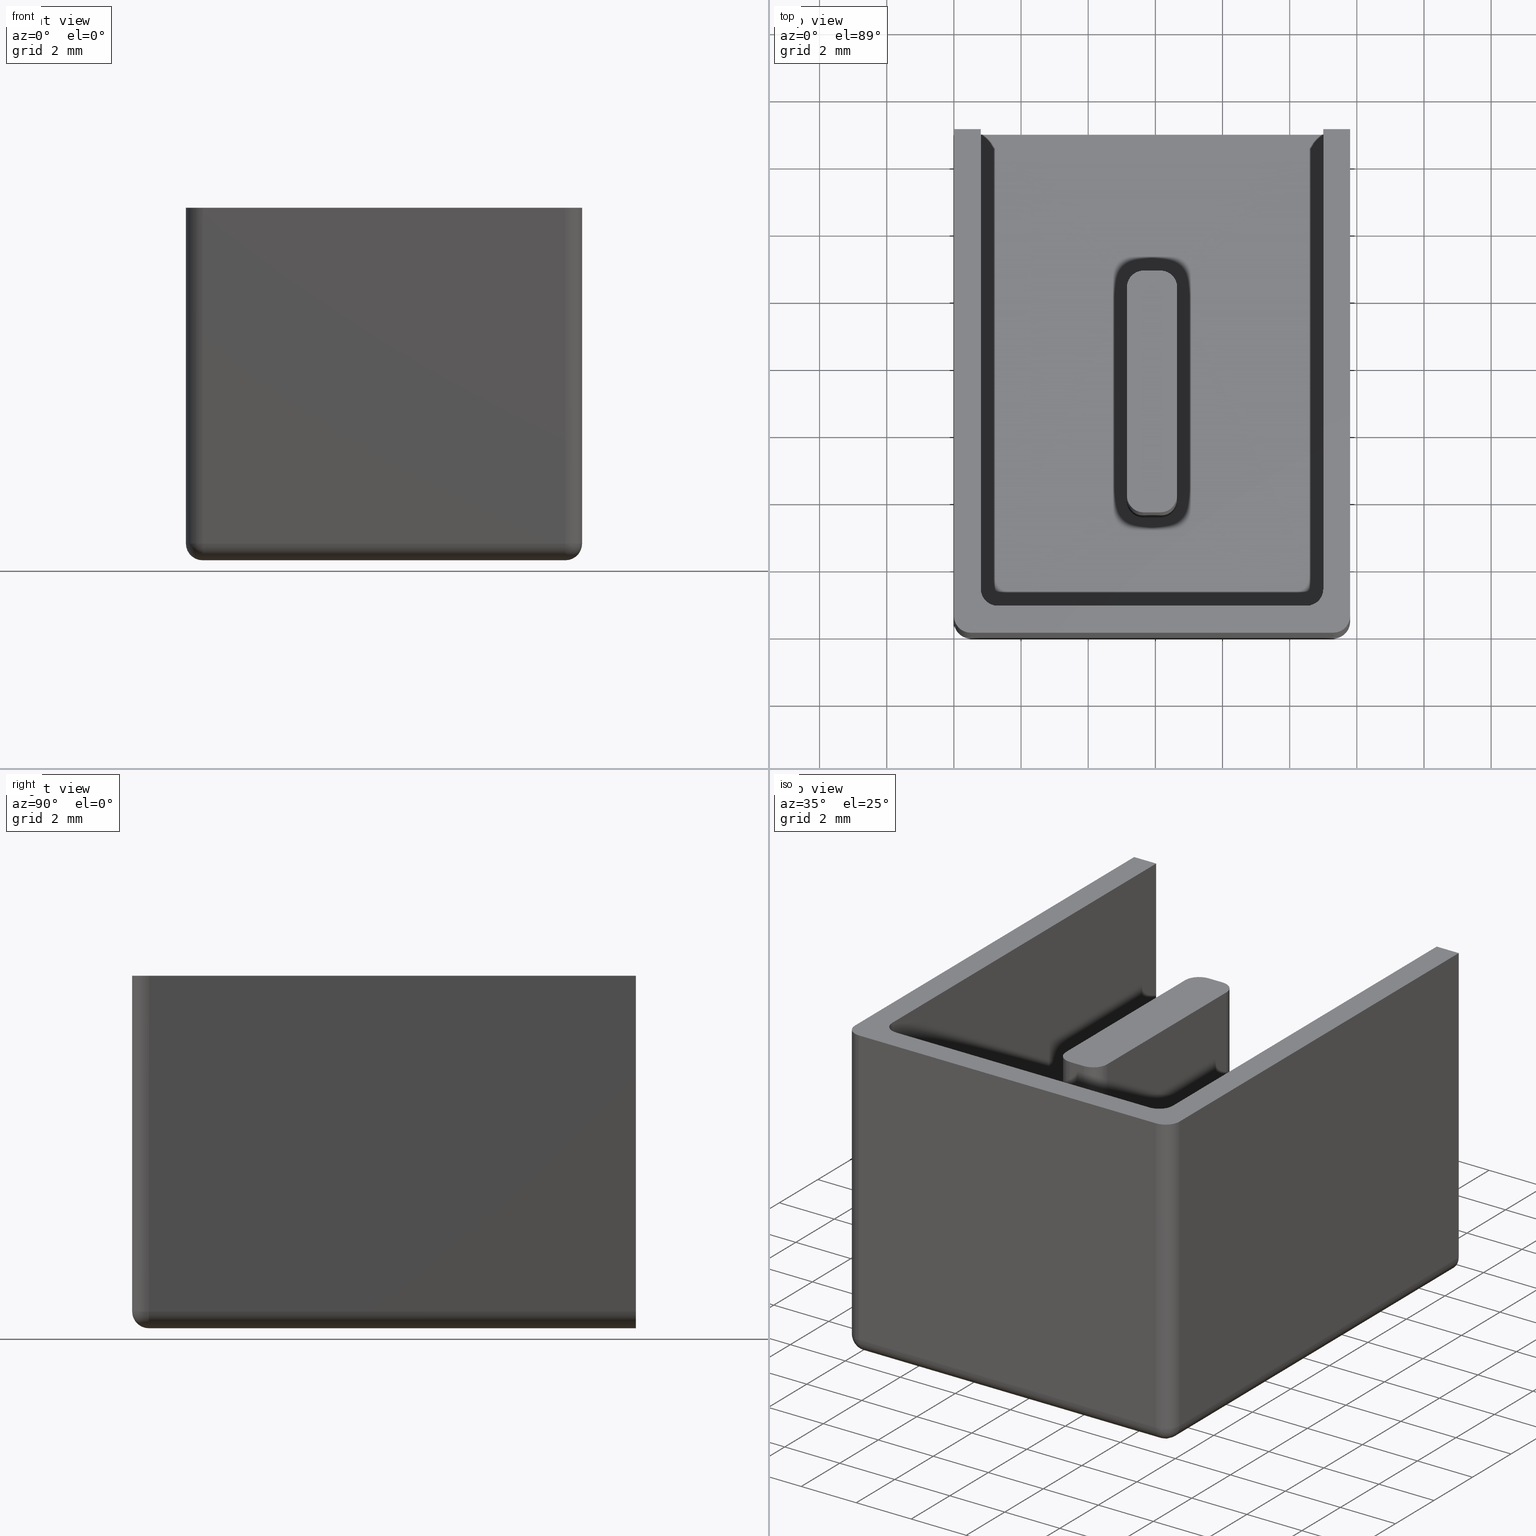
[diagram: canonical four-view strip — front | top / right | iso, engineering-drawing reading convention]
A machine part, canonical four-view strip (front | top / right | iso — engineering-drawing reading convention). The complete STEP part file that produces these views, byte-faithful:
ISO-10303-21;
HEADER;
FILE_DESCRIPTION (( 'STEP AP203' ),
    '1' );
FILE_NAME ('3026.STEP',
    '2020-08-17T13:37:18',
    ( '' ),
    ( '' ),
    'SwSTEP 2.0',
    'SolidWorks 2011',
    '' );
FILE_SCHEMA (( 'CONFIG_CONTROL_DESIGN' ));
ENDSEC;

DATA;
#1 = AXIS2_PLACEMENT_3D ( 'NONE', #386, #387, #389 ) ;
#2 = AXIS2_PLACEMENT_3D ( 'NONE', #509, #511, #513 ) ;
#3 = AXIS2_PLACEMENT_3D ( 'NONE', #444, #438, #460 ) ;
#4 = VECTOR ( 'NONE', #435, 1000.000000000000000 ) ;
#5 = AXIS2_PLACEMENT_3D ( 'NONE', #396, #403, #398 ) ;
#6 = AXIS2_PLACEMENT_3D ( 'NONE', #482, #484, #443 ) ;
#7 = AXIS2_PLACEMENT_3D ( 'NONE', #402, #420, #423 ) ;
#8 = AXIS2_PLACEMENT_3D ( 'NONE', #397, #390, #393 ) ;
#9 = AXIS2_PLACEMENT_3D ( 'NONE', #476, #483, #473 ) ;
#10 = AXIS2_PLACEMENT_3D ( 'NONE', #431, #427, #410 ) ;
#11 = AXIS2_PLACEMENT_3D ( 'NONE', #440, #456, #457 ) ;
#12 = AXIS2_PLACEMENT_3D ( 'NONE', #506, #490, #523 ) ;
#13 = CIRCLE ( 'NONE', #19, 0.4999999999999726900 ) ;
#14 = AXIS2_PLACEMENT_3D ( 'NONE', #434, #421, #417 ) ;
#15 = AXIS2_PLACEMENT_3D ( 'NONE', #470, #437, #459 ) ;
#16 = VECTOR ( 'NONE', #415, 1000.000000000000000 ) ;
#17 = AXIS2_PLACEMENT_3D ( 'NONE', #449, #451, #447 ) ;
#18 = CLOSED_SHELL ( 'NONE', ( #806, #828, #810, #809, #818, #823, #813, #808, #816, #817, #815, #829, #824, #825, #826, #827, #801, #822, #811, #803, #814, #820, #807, #812, #830, #819, #800, #821 ) ) ;
#19 = AXIS2_PLACEMENT_3D ( 'NONE', #432, #413, #433 ) ;
#20 = AXIS2_PLACEMENT_3D ( 'NONE', #478, #486, #488 ) ;
#21 = AXIS2_PLACEMENT_3D ( 'NONE', #471, #475, #455 ) ;
#22 = AXIS2_PLACEMENT_3D ( 'NONE', #479, #436, #487 ) ;
#23 = VECTOR ( 'NONE', #571, 1000.000000000000000 ) ;
#24 = VECTOR ( 'NONE', #604, 1000.000000000000000 ) ;
#25 = CIRCLE ( 'NONE', #58, 0.5000000000000000000 ) ;
#26 = VECTOR ( 'NONE', #670, 1000.000000000000000 ) ;
#27 = AXIS2_PLACEMENT_3D ( 'NONE', #554, #549, #567 ) ;
#28 = AXIS2_PLACEMENT_3D ( 'NONE', #598, #592, #612 ) ;
#29 = AXIS2_PLACEMENT_3D ( 'NONE', #662, #658, #667 ) ;
#30 = AXIS2_PLACEMENT_3D ( 'NONE', #498, #528, #524 ) ;
#31 = CIRCLE ( 'NONE', #33, 0.5000000000000000000 ) ;
#32 = VECTOR ( 'NONE', #596, 1000.000000000000000 ) ;
#33 = AXIS2_PLACEMENT_3D ( 'NONE', #552, #557, #553 ) ;
#34 = VECTOR ( 'NONE', #545, 1000.000000000000000 ) ;
#35 = VECTOR ( 'NONE', #644, 1000.000000000000000 ) ;
#36 = AXIS2_PLACEMENT_3D ( 'NONE', #512, #534, #535 ) ;
#37 = VECTOR ( 'NONE', #563, 1000.000000000000000 ) ;
#38 = AXIS2_PLACEMENT_3D ( 'NONE', #625, #617, #608 ) ;
#39 = CIRCLE ( 'NONE', #63, 0.5000000000000000000 ) ;
#40 = AXIS2_PLACEMENT_3D ( 'NONE', #497, #518, #500 ) ;
#41 = CIRCLE ( 'NONE', #44, 0.5000000000000000000 ) ;
#42 = CIRCLE ( 'NONE', #48, 0.5000000000000000000 ) ;
#43 = VECTOR ( 'NONE', #665, 1000.000000000000000 ) ;
#44 = AXIS2_PLACEMENT_3D ( 'NONE', #607, #589, #594 ) ;
#45 = VECTOR ( 'NONE', #588, 1000.000000000000000 ) ;
#46 = AXIS2_PLACEMENT_3D ( 'NONE', #522, #526, #530 ) ;
#47 = VECTOR ( 'NONE', #618, 1000.000000000000000 ) ;
#48 = AXIS2_PLACEMENT_3D ( 'NONE', #649, #650, #660 ) ;
#49 = AXIS2_PLACEMENT_3D ( 'NONE', #536, #532, #519 ) ;
#50 = VECTOR ( 'NONE', #574, 1000.000000000000000 ) ;
#51 = CIRCLE ( 'NONE', #65, 0.5000000000000698300 ) ;
#52 = CIRCLE ( 'NONE', #78, 0.5000000000000000000 ) ;
#53 = AXIS2_PLACEMENT_3D ( 'NONE', #544, #581, #572 ) ;
#54 = VECTOR ( 'NONE', #603, 1000.000000000000000 ) ;
#55 = CIRCLE ( 'NONE', #56, 0.5000000000000000000 ) ;
#56 = AXIS2_PLACEMENT_3D ( 'NONE', #626, #601, #600 ) ;
#57 = CIRCLE ( 'NONE', #38, 0.5000000000000000000 ) ;
#58 = AXIS2_PLACEMENT_3D ( 'NONE', #636, #652, #647 ) ;
#59 = CIRCLE ( 'NONE', #73, 0.5000000000000000000 ) ;
#60 = VECTOR ( 'NONE', #564, 1000.000000000000000 ) ;
#61 = CIRCLE ( 'NONE', #27, 0.5000000000000004400 ) ;
#62 = AXIS2_PLACEMENT_3D ( 'NONE', #533, #531, #495 ) ;
#63 = AXIS2_PLACEMENT_3D ( 'NONE', #575, #576, #543 ) ;
#64 = CIRCLE ( 'NONE', #28, 0.4999999999999726900 ) ;
#65 = AXIS2_PLACEMENT_3D ( 'NONE', #615, #599, #586 ) ;
#66 = AXIS2_PLACEMENT_3D ( 'NONE', #514, #491, #492 ) ;
#67 = VECTOR ( 'NONE', #580, 1000.000000000000000 ) ;
#68 = AXIS2_PLACEMENT_3D ( 'NONE', #462, #463, #516 ) ;
#69 = VECTOR ( 'NONE', #560, 1000.000000000000000 ) ;
#70 = VECTOR ( 'NONE', #605, 1000.000000000000000 ) ;
#71 = VECTOR ( 'NONE', #624, 1000.000000000000000 ) ;
#72 = VECTOR ( 'NONE', #558, 1000.000000000000000 ) ;
#73 = AXIS2_PLACEMENT_3D ( 'NONE', #606, #597, #623 ) ;
#74 = AXIS2_PLACEMENT_3D ( 'NONE', #568, #577, #583 ) ;
#75 = CIRCLE ( 'NONE', #29, 0.5000000000000004400 ) ;
#76 = AXIS2_PLACEMENT_3D ( 'NONE', #452, #453, #461 ) ;
#77 = CIRCLE ( 'NONE', #74, 0.4999999999999726900 ) ;
#78 = AXIS2_PLACEMENT_3D ( 'NONE', #642, #655, #646 ) ;
#79 = VECTOR ( 'NONE', #593, 1000.000000000000000 ) ;
#80 = AXIS2_PLACEMENT_3D ( 'NONE', #501, #540, #504 ) ;
#81 = VECTOR ( 'NONE', #570, 1000.000000000000000 ) ;
#82 = VECTOR ( 'NONE', #653, 1000.000000000000000 ) ;
#83 = AXIS2_PLACEMENT_3D ( 'NONE', #632, #633, #634 ) ;
#84 = VECTOR ( 'NONE', #696, 1000.000000000000000 ) ;
#85 = VECTOR ( 'NONE', #686, 1000.000000000000000 ) ;
#86 = VECTOR ( 'NONE', #691, 1000.000000000000000 ) ;
#87 = VECTOR ( 'NONE', #640, 1000.000000000000000 ) ;
#88 = CIRCLE ( 'NONE', #89, 0.5000000000000698300 ) ;
#89 = AXIS2_PLACEMENT_3D ( 'NONE', #689, #703, #705 ) ;
#90 = VECTOR ( 'NONE', #717, 1000.000000000000000 ) ;
#91 = VECTOR ( 'NONE', #663, 1000.000000000000000 ) ;
#92 = VECTOR ( 'NONE', #684, 1000.000000000000000 ) ;
#93 = VECTOR ( 'NONE', #643, 1000.000000000000000 ) ;
#94 = CIRCLE ( 'NONE', #83, 0.4999999999999726900 ) ;
#95 = VECTOR ( 'NONE', #671, 1000.000000000000000 ) ;
#96 = VECTOR ( 'NONE', #651, 1000.000000000000000 ) ;
#97 = VECTOR ( 'NONE', #657, 1000.000000000000000 ) ;
#98 = VECTOR ( 'NONE', #749, 1000.000000000000000 ) ;
#99 = VECTOR ( 'NONE', #750, 1000.000000000000000 ) ;
#100 = VECTOR ( 'NONE', #726, 1000.000000000000000 ) ;
#101 = AXIS2_PLACEMENT_3D ( 'NONE', #735, #729, #753 ) ;
#102 = VECTOR ( 'NONE', #682, 1000.000000000000000 ) ;
#103 = CIRCLE ( 'NONE', #104, 0.4999999999999726900 ) ;
#104 = AXIS2_PLACEMENT_3D ( 'NONE', #736, #722, #742 ) ;
#105 = CIRCLE ( 'NONE', #107, 0.5000000000000004400 ) ;
#106 = CIRCLE ( 'NONE', #101, 0.4999999999999726900 ) ;
#107 = AXIS2_PLACEMENT_3D ( 'NONE', #738, #737, #720 ) ;
#108 = VECTOR ( 'NONE', #706, 1000.000000000000000 ) ;
#109 = VECTOR ( 'NONE', #744, 1000.000000000000000 ) ;
#110 = VECTOR ( 'NONE', #751, 1000.000000000000000 ) ;
#111 = AXIS2_PLACEMENT_3D ( 'NONE', #698, #701, #713 ) ;
#112 = AXIS2_PLACEMENT_3D ( 'NONE', #739, #721, #724 ) ;
#113 = CIRCLE ( 'NONE', #111, 0.5000000000000004400 ) ;
#114 = VECTOR ( 'NONE', #697, 1000.000000000000000 ) ;
#115 = VECTOR ( 'NONE', #695, 1000.000000000000000 ) ;
#116 = VECTOR ( 'NONE', #678, 1000.000000000000000 ) ;
#117 = VECTOR ( 'NONE', #712, 1000.000000000000000 ) ;
#118 =( GEOMETRIC_REPRESENTATION_CONTEXT ( 3 ) GLOBAL_UNCERTAINTY_ASSIGNED_CONTEXT ( ( #797 ) ) GLOBAL_UNIT_ASSIGNED_CONTEXT ( ( #747, #748, #754 ) ) REPRESENTATION_CONTEXT ( 'NONE', 'WORKASPACE' ) );
#119 = CIRCLE ( 'NONE', #120, 0.5000000000000000000 ) ;
#120 = AXIS2_PLACEMENT_3D ( 'NONE', #741, #755, #752 ) ;
#121 = ORGANIZATION ( 'BEL�RT�LMEM��', 'BEL�RT�LMEM��', '' ) ;
#122 = VECTOR ( 'NONE', #687, 1000.000000000000000 ) ;
#123 = VECTOR ( 'NONE', #688, 1000.000000000000000 ) ;
#124 = APPROVAL_PERSON_ORGANIZATION ( #730, #897, #733 ) ;
#125 = CC_DESIGN_APPROVAL ( #907, ( #136 ) ) ;
#126 = PRODUCT_DEFINITION_FORMATION_WITH_SPECIFIED_SOURCE ( '     Herhangi', '', #799, .NOT_KNOWN. ) ;
#127 = CC_DESIGN_SECURITY_CLASSIFICATION ( #136, ( #126 ) ) ;
#128 = CC_DESIGN_APPROVAL ( #904, ( #126 ) ) ;
#129 = LOCAL_TIME ( 16, 37, 18.00000000000000000, #772 ) ;
#130 = APPROVAL_PERSON_ORGANIZATION ( #765, #907, #789 ) ;
#131 = LOCAL_TIME ( 16, 37, 18.00000000000000000, #775 ) ;
#132 = APPROVAL_PERSON_ORGANIZATION ( #784, #904, #762 ) ;
#133 = LOCAL_TIME ( 16, 37, 18.00000000000000000, #771 ) ;
#134 = CC_DESIGN_APPROVAL ( #897, ( #896 ) ) ;
#135 = LOCAL_TIME ( 16, 37, 18.00000000000000000, #782 ) ;
#136 = SECURITY_CLASSIFICATION ( '', '', #787 ) ;
#137 = LOCAL_TIME ( 16, 37, 18.00000000000000000, #766 ) ;
#138 = ADVANCED_BREP_SHAPE_REPRESENTATION ( '3026', ( #796, #112 ), #118 ) ;
#139 = PERSON ( 'BEL�RT�LMEM��', 'BEL�RT�LMEM��', 'BEL�RT�LMEM��', ('BEL�RT�LMEM��'), ('BEL�RT�LMEM��'), ('BEL�RT�LMEM��') ) ;
#140 = ORIENTED_EDGE ( 'NONE', *, *, #888, .F. ) ;
#141 = ORIENTED_EDGE ( 'NONE', *, *, #858, .T. ) ;
#142 = ORIENTED_EDGE ( 'NONE', *, *, #891, .F. ) ;
#143 = ORIENTED_EDGE ( 'NONE', *, *, #864, .F. ) ;
#144 = ORIENTED_EDGE ( 'NONE', *, *, #804, .F. ) ;
#145 = ORIENTED_EDGE ( 'NONE', *, *, #835, .T. ) ;
#146 = ORIENTED_EDGE ( 'NONE', *, *, #869, .T. ) ;
#147 = ORIENTED_EDGE ( 'NONE', *, *, #861, .T. ) ;
#148 = ORIENTED_EDGE ( 'NONE', *, *, #865, .T. ) ;
#149 = ORIENTED_EDGE ( 'NONE', *, *, #802, .T. ) ;
#150 = ORIENTED_EDGE ( 'NONE', *, *, #883, .T. ) ;
#151 = ORIENTED_EDGE ( 'NONE', *, *, #890, .T. ) ;
#152 = ORIENTED_EDGE ( 'NONE', *, *, #868, .F. ) ;
#153 = ORIENTED_EDGE ( 'NONE', *, *, #850, .F. ) ;
#154 = ORIENTED_EDGE ( 'NONE', *, *, #880, .T. ) ;
#155 = ORIENTED_EDGE ( 'NONE', *, *, #837, .F. ) ;
#156 = ORIENTED_EDGE ( 'NONE', *, *, #899, .T. ) ;
#157 = ORIENTED_EDGE ( 'NONE', *, *, #874, .T. ) ;
#158 = ORIENTED_EDGE ( 'NONE', *, *, #885, .F. ) ;
#159 = ORIENTED_EDGE ( 'NONE', *, *, #876, .F. ) ;
#160 = ORIENTED_EDGE ( 'NONE', *, *, #857, .T. ) ;
#161 = ORIENTED_EDGE ( 'NONE', *, *, #894, .T. ) ;
#162 = ORIENTED_EDGE ( 'NONE', *, *, #873, .T. ) ;
#163 = ORIENTED_EDGE ( 'NONE', *, *, #886, .F. ) ;
#164 = ORIENTED_EDGE ( 'NONE', *, *, #890, .F. ) ;
#165 = ORIENTED_EDGE ( 'NONE', *, *, #889, .T. ) ;
#166 = ORIENTED_EDGE ( 'NONE', *, *, #854, .F. ) ;
#167 = ORIENTED_EDGE ( 'NONE', *, *, #844, .T. ) ;
#168 = ORIENTED_EDGE ( 'NONE', *, *, #881, .T. ) ;
#169 = ORIENTED_EDGE ( 'NONE', *, *, #832, .F. ) ;
#170 = ORIENTED_EDGE ( 'NONE', *, *, #873, .F. ) ;
#171 = ORIENTED_EDGE ( 'NONE', *, *, #882, .T. ) ;
#172 = ORIENTED_EDGE ( 'NONE', *, *, #848, .T. ) ;
#173 = ORIENTED_EDGE ( 'NONE', *, *, #867, .T. ) ;
#174 = ORIENTED_EDGE ( 'NONE', *, *, #857, .F. ) ;
#175 = ORIENTED_EDGE ( 'NONE', *, *, #884, .F. ) ;
#176 = ORIENTED_EDGE ( 'NONE', *, *, #883, .F. ) ;
#177 = ORIENTED_EDGE ( 'NONE', *, *, #863, .T. ) ;
#178 = ORIENTED_EDGE ( 'NONE', *, *, #881, .F. ) ;
#179 = ORIENTED_EDGE ( 'NONE', *, *, #887, .T. ) ;
#180 = ORIENTED_EDGE ( 'NONE', *, *, #837, .T. ) ;
#181 = ORIENTED_EDGE ( 'NONE', *, *, #840, .T. ) ;
#182 = ORIENTED_EDGE ( 'NONE', *, *, #869, .F. ) ;
#183 = ORIENTED_EDGE ( 'NONE', *, *, #844, .F. ) ;
#184 = ORIENTED_EDGE ( 'NONE', *, *, #832, .T. ) ;
#185 = ORIENTED_EDGE ( 'NONE', *, *, #885, .T. ) ;
#186 = ORIENTED_EDGE ( 'NONE', *, *, #856, .T. ) ;
#187 = ORIENTED_EDGE ( 'NONE', *, *, #864, .T. ) ;
#188 = ORIENTED_EDGE ( 'NONE', *, *, #854, .T. ) ;
#189 = ORIENTED_EDGE ( 'NONE', *, *, #859, .T. ) ;
#190 = ORIENTED_EDGE ( 'NONE', *, *, #871, .T. ) ;
#191 = ORIENTED_EDGE ( 'NONE', *, *, #836, .F. ) ;
#192 = ORIENTED_EDGE ( 'NONE', *, *, #882, .F. ) ;
#193 = ORIENTED_EDGE ( 'NONE', *, *, #880, .F. ) ;
#194 = ORIENTED_EDGE ( 'NONE', *, *, #875, .F. ) ;
#195 = ORIENTED_EDGE ( 'NONE', *, *, #859, .F. ) ;
#196 = ORIENTED_EDGE ( 'NONE', *, *, #866, .F. ) ;
#197 = ORIENTED_EDGE ( 'NONE', *, *, #802, .F. ) ;
#198 = ORIENTED_EDGE ( 'NONE', *, *, #846, .T. ) ;
#199 = ORIENTED_EDGE ( 'NONE', *, *, #879, .T. ) ;
#200 = ORIENTED_EDGE ( 'NONE', *, *, #867, .F. ) ;
#201 = ORIENTED_EDGE ( 'NONE', *, *, #831, .T. ) ;
#202 = ORIENTED_EDGE ( 'NONE', *, *, #805, .F. ) ;
#203 = ORIENTED_EDGE ( 'NONE', *, *, #891, .T. ) ;
#204 = ORIENTED_EDGE ( 'NONE', *, *, #868, .T. ) ;
#205 = ORIENTED_EDGE ( 'NONE', *, *, #845, .F. ) ;
#206 = ORIENTED_EDGE ( 'NONE', *, *, #847, .T. ) ;
#207 = ORIENTED_EDGE ( 'NONE', *, *, #851, .F. ) ;
#208 = ORIENTED_EDGE ( 'NONE', *, *, #847, .F. ) ;
#209 = ORIENTED_EDGE ( 'NONE', *, *, #852, .F. ) ;
#210 = ORIENTED_EDGE ( 'NONE', *, *, #841, .T. ) ;
#211 = ORIENTED_EDGE ( 'NONE', *, *, #834, .F. ) ;
#212 = ORIENTED_EDGE ( 'NONE', *, *, #902, .F. ) ;
#213 = ORIENTED_EDGE ( 'NONE', *, *, #855, .F. ) ;
#214 = ORIENTED_EDGE ( 'NONE', *, *, #853, .F. ) ;
#215 = ORIENTED_EDGE ( 'NONE', *, *, #835, .F. ) ;
#216 = ORIENTED_EDGE ( 'NONE', *, *, #834, .T. ) ;
#217 = ORIENTED_EDGE ( 'NONE', *, *, #846, .F. ) ;
#218 = ORIENTED_EDGE ( 'NONE', *, *, #841, .F. ) ;
#219 = ORIENTED_EDGE ( 'NONE', *, *, #892, .F. ) ;
#220 = ORIENTED_EDGE ( 'NONE', *, *, #845, .T. ) ;
#221 = ORIENTED_EDGE ( 'NONE', *, *, #853, .T. ) ;
#222 = ORIENTED_EDGE ( 'NONE', *, *, #856, .F. ) ;
#223 = ORIENTED_EDGE ( 'NONE', *, *, #860, .F. ) ;
#224 = ORIENTED_EDGE ( 'NONE', *, *, #850, .T. ) ;
#225 = ORIENTED_EDGE ( 'NONE', *, *, #849, .F. ) ;
#226 = ORIENTED_EDGE ( 'NONE', *, *, #865, .F. ) ;
#227 = ORIENTED_EDGE ( 'NONE', *, *, #839, .F. ) ;
#228 = ORIENTED_EDGE ( 'NONE', *, *, #870, .T. ) ;
#229 = ORIENTED_EDGE ( 'NONE', *, *, #840, .F. ) ;
#230 = ORIENTED_EDGE ( 'NONE', *, *, #862, .T. ) ;
#231 = ORIENTED_EDGE ( 'NONE', *, *, #892, .T. ) ;
#232 = ORIENTED_EDGE ( 'NONE', *, *, #884, .T. ) ;
#233 = ORIENTED_EDGE ( 'NONE', *, *, #879, .F. ) ;
#234 = ORIENTED_EDGE ( 'NONE', *, *, #858, .F. ) ;
#235 = ORIENTED_EDGE ( 'NONE', *, *, #877, .T. ) ;
#236 = ORIENTED_EDGE ( 'NONE', *, *, #894, .F. ) ;
#237 = ORIENTED_EDGE ( 'NONE', *, *, #874, .F. ) ;
#238 = ORIENTED_EDGE ( 'NONE', *, *, #833, .F. ) ;
#239 = ORIENTED_EDGE ( 'NONE', *, *, #886, .T. ) ;
#240 = ORIENTED_EDGE ( 'NONE', *, *, #871, .F. ) ;
#241 = ORIENTED_EDGE ( 'NONE', *, *, #804, .T. ) ;
#242 = ORIENTED_EDGE ( 'NONE', *, *, #889, .F. ) ;
#243 = ORIENTED_EDGE ( 'NONE', *, *, #852, .T. ) ;
#244 = ORIENTED_EDGE ( 'NONE', *, *, #842, .F. ) ;
#245 = ORIENTED_EDGE ( 'NONE', *, *, #878, .T. ) ;
#246 = ORIENTED_EDGE ( 'NONE', *, *, #870, .F. ) ;
#247 = ORIENTED_EDGE ( 'NONE', *, *, #842, .T. ) ;
#248 = ORIENTED_EDGE ( 'NONE', *, *, #839, .T. ) ;
#249 = ORIENTED_EDGE ( 'NONE', *, *, #893, .F. ) ;
#250 = ORIENTED_EDGE ( 'NONE', *, *, #836, .T. ) ;
#251 = ORIENTED_EDGE ( 'NONE', *, *, #875, .T. ) ;
#252 = ORIENTED_EDGE ( 'NONE', *, *, #849, .T. ) ;
#253 = ORIENTED_EDGE ( 'NONE', *, *, #861, .F. ) ;
#254 = ORIENTED_EDGE ( 'NONE', *, *, #878, .F. ) ;
#255 = ORIENTED_EDGE ( 'NONE', *, *, #862, .F. ) ;
#256 = ORIENTED_EDGE ( 'NONE', *, *, #855, .T. ) ;
#257 = ORIENTED_EDGE ( 'NONE', *, *, #863, .F. ) ;
#258 = ORIENTED_EDGE ( 'NONE', *, *, #877, .F. ) ;
#259 = ORIENTED_EDGE ( 'NONE', *, *, #838, .F. ) ;
#260 = ORIENTED_EDGE ( 'NONE', *, *, #843, .T. ) ;
#261 = ORIENTED_EDGE ( 'NONE', *, *, #866, .T. ) ;
#262 = ORIENTED_EDGE ( 'NONE', *, *, #887, .F. ) ;
#263 = ORIENTED_EDGE ( 'NONE', *, *, #831, .F. ) ;
#264 = ORIENTED_EDGE ( 'NONE', *, *, #899, .F. ) ;
#265 = ORIENTED_EDGE ( 'NONE', *, *, #860, .T. ) ;
#266 = ORIENTED_EDGE ( 'NONE', *, *, #838, .T. ) ;
#267 = EDGE_LOOP ( 'NONE', ( #178, #181, #195, #255 ) ) ;
#268 = VERTEX_POINT ( 'NONE', #369 ) ;
#269 = EDGE_LOOP ( 'NONE', ( #203, #211, #249, #243 ) ) ;
#270 = ORIENTED_EDGE ( 'NONE', *, *, #872, .F. ) ;
#271 = EDGE_LOOP ( 'NONE', ( #224, #309, #218, #287 ) ) ;
#272 = VERTEX_POINT ( 'NONE', #288 ) ;
#273 = VERTEX_POINT ( 'NONE', #304 ) ;
#274 = VERTEX_POINT ( 'NONE', #334 ) ;
#275 = VERTEX_POINT ( 'NONE', #326 ) ;
#276 = ORIENTED_EDGE ( 'NONE', *, *, #872, .T. ) ;
#277 = EDGE_LOOP ( 'NONE', ( #276, #220, #221, #278, #286, #256, #210, #248 ) ) ;
#278 = ORIENTED_EDGE ( 'NONE', *, *, #902, .T. ) ;
#279 = ORIENTED_EDGE ( 'NONE', *, *, #888, .T. ) ;
#280 = EDGE_LOOP ( 'NONE', ( #154, #231, #197, #172 ) ) ;
#281 = ORIENTED_EDGE ( 'NONE', *, *, #876, .T. ) ;
#282 = VERTEX_POINT ( 'NONE', #346 ) ;
#283 = VERTEX_POINT ( 'NONE', #367 ) ;
#284 = VERTEX_POINT ( 'NONE', #351 ) ;
#285 = VERTEX_POINT ( 'NONE', #347 ) ;
#286 = ORIENTED_EDGE ( 'NONE', *, *, #893, .T. ) ;
#287 = ORIENTED_EDGE ( 'NONE', *, *, #833, .T. ) ;
#288 = CARTESIAN_POINT ( 'NONE',  ( 5.649999999999821800, 10.80000000000011400, 0.8000000000000003800 ) ) ;
#289 = EDGE_LOOP ( 'NONE', ( #232, #209, #212, #235 ) ) ;
#290 = EDGE_LOOP ( 'NONE', ( #294, #223, #205, #315 ) ) ;
#291 = EDGE_LOOP ( 'NONE', ( #236, #240, #215, #219 ) ) ;
#292 = EDGE_LOOP ( 'NONE', ( #253, #233, #163, #262 ) ) ;
#293 = EDGE_LOOP ( 'NONE', ( #189, #201, #185, #196 ) ) ;
#294 = ORIENTED_EDGE ( 'NONE', *, *, #805, .T. ) ;
#295 = EDGE_LOOP ( 'NONE', ( #144, #152, #153, #140, #142, #175, #159, #202 ) ) ;
#296 = EDGE_LOOP ( 'NONE', ( #160, #245, #246, #188 ) ) ;
#297 = EDGE_LOOP ( 'NONE', ( #226, #179, #168, #259 ) ) ;
#298 = EDGE_LOOP ( 'NONE', ( #204, #244, #227, #260 ) ) ;
#299 = EDGE_LOOP ( 'NONE', ( #206, #264, #225 ) ) ;
#300 = EDGE_LOOP ( 'NONE', ( #162, #198, #164, #200 ) ) ;
#301 = EDGE_LOOP ( 'NONE', ( #222, #318, #234, #217 ) ) ;
#302 = VERTEX_POINT ( 'NONE', #375 ) ;
#303 = EDGE_LOOP ( 'NONE', ( #266, #230, #261, #183, #166, #194, #173, #187, #184, #242 ) ) ;
#304 = CARTESIAN_POINT ( 'NONE',  ( 11.00000000000000200, 1.299999999999999200, 0.8000000000000000400 ) ) ;
#305 = EDGE_LOOP ( 'NONE', ( #146, #147, #148, #165, #155, #161, #193, #186, #170, #251, #228, #177 ) ) ;
#306 = VERTEX_POINT ( 'NONE', #353 ) ;
#307 = VERTEX_POINT ( 'NONE', #354 ) ;
#308 = VERTEX_POINT ( 'NONE', #377 ) ;
#309 = ORIENTED_EDGE ( 'NONE', *, *, #843, .F. ) ;
#310 = EDGE_LOOP ( 'NONE', ( #158, #156, #174, #167 ) ) ;
#311 = EDGE_LOOP ( 'NONE', ( #176, #190, #180, #169 ) ) ;
#312 = EDGE_LOOP ( 'NONE', ( #191, #229, #239 ) ) ;
#313 = EDGE_LOOP ( 'NONE', ( #241, #207, #270, #247 ) ) ;
#314 = EDGE_LOOP ( 'NONE', ( #281, #258, #214, #265 ) ) ;
#315 = ORIENTED_EDGE ( 'NONE', *, *, #851, .T. ) ;
#316 = EDGE_LOOP ( 'NONE', ( #171, #199, #182, #157 ) ) ;
#317 = EDGE_LOOP ( 'NONE', ( #149, #145, #150, #143, #151, #141 ) ) ;
#318 = ORIENTED_EDGE ( 'NONE', *, *, #848, .F. ) ;
#319 = EDGE_LOOP ( 'NONE', ( #257, #254, #208, #237 ) ) ;
#320 = EDGE_LOOP ( 'NONE', ( #263, #250, #192, #252 ) ) ;
#321 = VERTEX_POINT ( 'NONE', #383 ) ;
#322 = VERTEX_POINT ( 'NONE', #355 ) ;
#323 = EDGE_LOOP ( 'NONE', ( #279, #238, #213, #216 ) ) ;
#324 = VERTEX_POINT ( 'NONE', #325 ) ;
#325 = CARTESIAN_POINT ( 'NONE',  ( 1.300000000000000000, 0.8000000000000003800, 0.8000000000000000400 ) ) ;
#326 = CARTESIAN_POINT ( 'NONE',  ( 6.149999999999877800, 10.80000000000011400, 0.8000000000000000400 ) ) ;
#327 = CARTESIAN_POINT ( 'NONE',  ( 0.0000000000000000000, 15.00000000000000000, 10.50000000000000000 ) ) ;
#328 = CARTESIAN_POINT ( 'NONE',  ( 11.30000000000000100, 0.0000000000000000000, 10.50000000000000000 ) ) ;
#329 = CARTESIAN_POINT ( 'NONE',  ( 1.300000000000000000, 0.8000000000000003800, 10.50000000000000000 ) ) ;
#330 = CARTESIAN_POINT ( 'NONE',  ( 6.149999999999988800, 3.599999999999992100, 9.629999999999999000 ) ) ;
#331 = VERTEX_POINT ( 'NONE', #366 ) ;
#332 = CARTESIAN_POINT ( 'NONE',  ( 6.650000000000003000, 10.30000000000031000, 0.8000000000000003800 ) ) ;
#333 = VERTEX_POINT ( 'NONE', #356 ) ;
#334 = CARTESIAN_POINT ( 'NONE',  ( 5.649999999999932900, 3.599999999999992100, 0.8000000000000000400 ) ) ;
#335 = CARTESIAN_POINT ( 'NONE',  ( 11.30000000000000100, 0.4999999999999998900, 0.0000000000000000000 ) ) ;
#336 = CARTESIAN_POINT ( 'NONE',  ( 11.30000000000000100, 0.0000000000000000000, 0.5000000000000004400 ) ) ;
#337 = CARTESIAN_POINT ( 'NONE',  ( 6.650000000000003000, 10.30000000000031000, 9.629999999999999000 ) ) ;
#338 = VERTEX_POINT ( 'NONE', #348 ) ;
#339 = VERTEX_POINT ( 'NONE', #357 ) ;
#340 = VERTEX_POINT ( 'NONE', #359 ) ;
#341 = VERTEX_POINT ( 'NONE', #362 ) ;
#342 = VERTEX_POINT ( 'NONE', #335 ) ;
#343 = VERTEX_POINT ( 'NONE', #363 ) ;
#344 = VERTEX_POINT ( 'NONE', #378 ) ;
#345 = VERTEX_POINT ( 'NONE', #381 ) ;
#346 = CARTESIAN_POINT ( 'NONE',  ( 0.7999999999999999300, 15.00000000000000400, 0.8000000000000000400 ) ) ;
#347 = CARTESIAN_POINT ( 'NONE',  ( 11.00000000000000200, 15.00000000000000400, 0.8000000000000000400 ) ) ;
#348 = CARTESIAN_POINT ( 'NONE',  ( 11.00000000000000200, 1.299999999999999200, 10.50000000000000000 ) ) ;
#349 = VERTEX_POINT ( 'NONE', #382 ) ;
#350 = VERTEX_POINT ( 'NONE', #327 ) ;
#351 = CARTESIAN_POINT ( 'NONE',  ( 0.7999999999999999300, 1.299999999999999200, 0.8000000000000000400 ) ) ;
#352 = VERTEX_POINT ( 'NONE', #328 ) ;
#353 = CARTESIAN_POINT ( 'NONE',  ( 5.149999999999987900, 10.30000000000014300, 0.8000000000000000400 ) ) ;
#354 = CARTESIAN_POINT ( 'NONE',  ( 0.0000000000000000000, 0.4999999999999998900, 0.5000000000000004400 ) ) ;
#355 = CARTESIAN_POINT ( 'NONE',  ( 6.649999999999933700, 4.099999999999992500, 0.8000000000000000400 ) ) ;
#356 = CARTESIAN_POINT ( 'NONE',  ( 6.649999999999933700, 4.099999999999992500, 9.629999999999999000 ) ) ;
#357 = CARTESIAN_POINT ( 'NONE',  ( 11.80000000000000100, 15.00000000000000000, 10.50000000000000000 ) ) ;
#358 = VERTEX_POINT ( 'NONE', #329 ) ;
#359 = CARTESIAN_POINT ( 'NONE',  ( 0.5000000000000004400, 0.0000000000000000000, 0.5000000000000004400 ) ) ;
#360 = VERTEX_POINT ( 'NONE', #330 ) ;
#361 = VERTEX_POINT ( 'NONE', #332 ) ;
#362 = CARTESIAN_POINT ( 'NONE',  ( 5.149999999999960400, 4.099999999999992500, 9.629999999999999000 ) ) ;
#363 = CARTESIAN_POINT ( 'NONE',  ( 0.4999999999999997800, 0.0000000000000000000, 10.50000000000000000 ) ) ;
#364 = VERTEX_POINT ( 'NONE', #336 ) ;
#365 = VERTEX_POINT ( 'NONE', #337 ) ;
#366 = CARTESIAN_POINT ( 'NONE',  ( 0.4999999999999998900, 15.00000000000000000, 0.0000000000000000000 ) ) ;
#367 = CARTESIAN_POINT ( 'NONE',  ( 5.149999999999960400, 4.099999999999992500, 0.8000000000000003800 ) ) ;
#368 = VERTEX_POINT ( 'NONE', #406 ) ;
#369 = CARTESIAN_POINT ( 'NONE',  ( 6.149999999999988800, 3.599999999999992100, 0.8000000000000000400 ) ) ;
#370 = VERTEX_POINT ( 'NONE', #404 ) ;
#371 = VERTEX_POINT ( 'NONE', #422 ) ;
#372 = VERTEX_POINT ( 'NONE', #418 ) ;
#373 = VERTEX_POINT ( 'NONE', #430 ) ;
#374 = VERTEX_POINT ( 'NONE', #419 ) ;
#375 = CARTESIAN_POINT ( 'NONE',  ( 5.649999999999821800, 10.80000000000011400, 9.629999999999999000 ) ) ;
#376 = VERTEX_POINT ( 'NONE', #425 ) ;
#377 = CARTESIAN_POINT ( 'NONE',  ( 11.00000000000000200, 15.00000000000000400, 10.50000000000000000 ) ) ;
#378 = CARTESIAN_POINT ( 'NONE',  ( 10.49999999999999800, 0.8000000000000003800, 10.50000000000000000 ) ) ;
#379 = VERTEX_POINT ( 'NONE', #426 ) ;
#380 = VERTEX_POINT ( 'NONE', #416 ) ;
#381 = CARTESIAN_POINT ( 'NONE',  ( 0.0000000000000000000, 0.4999999999999998900, 10.50000000000000000 ) ) ;
#382 = CARTESIAN_POINT ( 'NONE',  ( 0.7999999999999999300, 1.299999999999999200, 10.50000000000000000 ) ) ;
#383 = CARTESIAN_POINT ( 'NONE',  ( 10.49999999999999800, 0.8000000000000003800, 0.8000000000000000400 ) ) ;
#384 = VERTEX_POINT ( 'NONE', #388 ) ;
#385 = FACE_OUTER_BOUND ( 'NONE', #317, .T. ) ;
#386 = CARTESIAN_POINT ( 'NONE',  ( 0.0000000000000000000, 15.00000000000000000, 0.8000000000000000400 ) ) ;
#387 = DIRECTION ( 'NONE',  ( 0.0000000000000000000, 0.0000000000000000000, -1.000000000000000000 ) ) ;
#388 = CARTESIAN_POINT ( 'NONE',  ( 11.80000000000000100, 0.5000000000000004400, 0.5000000000000004400 ) ) ;
#389 = DIRECTION ( 'NONE',  ( -1.000000000000000000, 0.0000000000000000000, -0.0000000000000000000 ) ) ;
#390 = DIRECTION ( 'NONE',  ( -5.551115123125161100E-014, -1.000000000000000000, 0.0000000000000000000 ) ) ;
#391 = FACE_OUTER_BOUND ( 'NONE', #298, .T. ) ;
#392 = PLANE ( 'NONE',  #5 ) ;
#393 = DIRECTION ( 'NONE',  ( 1.000000000000000000, -5.551115123125161100E-014, 0.0000000000000000000 ) ) ;
#394 = PLANE ( 'NONE',  #17 ) ;
#395 = SPHERICAL_SURFACE ( 'NONE', #10, 0.5000000000000000000 ) ;
#396 = CARTESIAN_POINT ( 'NONE',  ( 0.7999999999999999300, 0.0000000000000000000, 10.50000000000000000 ) ) ;
#397 = CARTESIAN_POINT ( 'NONE',  ( 5.649999999999821800, 10.80000000000014300, 9.629999999999999000 ) ) ;
#398 = DIRECTION ( 'NONE',  ( 0.0000000000000000000, 0.0000000000000000000, -1.000000000000000000 ) ) ;
#399 = PLANE ( 'NONE',  #1 ) ;
#400 = FACE_OUTER_BOUND ( 'NONE', #299, .T. ) ;
#401 = CARTESIAN_POINT ( 'NONE',  ( 6.650000000000044800, 10.30000000000031000, 0.8000000000000000400 ) ) ;
#402 = CARTESIAN_POINT ( 'NONE',  ( 6.149999999999988800, 3.599999999999992100, 9.629999999999999000 ) ) ;
#403 = DIRECTION ( 'NONE',  ( 1.000000000000000000, 0.0000000000000000000, 0.0000000000000000000 ) ) ;
#404 = CARTESIAN_POINT ( 'NONE',  ( 5.149999999999987900, 10.30000000000014300, 9.629999999999999000 ) ) ;
#405 = CYLINDRICAL_SURFACE ( 'NONE', #14, 0.4999999999999726900 ) ;
#406 = CARTESIAN_POINT ( 'NONE',  ( 11.80000000000000100, 15.00000000000000000, 0.5000000000000022200 ) ) ;
#407 = PLANE ( 'NONE',  #7 ) ;
#408 = FACE_OUTER_BOUND ( 'NONE', #289, .T. ) ;
#409 = FACE_BOUND ( 'NONE', #295, .T. ) ;
#410 = DIRECTION ( 'NONE',  ( 1.000000000000000000, 0.0000000000000000000, 0.0000000000000000000 ) ) ;
#411 = FACE_OUTER_BOUND ( 'NONE', #300, .T. ) ;
#412 = FACE_OUTER_BOUND ( 'NONE', #313, .T. ) ;
#413 = DIRECTION ( 'NONE',  ( 0.0000000000000000000, 0.0000000000000000000, 1.000000000000000000 ) ) ;
#414 = PLANE ( 'NONE',  #8 ) ;
#415 = DIRECTION ( 'NONE',  ( 1.000000000000000000, 0.0000000000000000000, 0.0000000000000000000 ) ) ;
#416 = CARTESIAN_POINT ( 'NONE',  ( 5.649999999999932900, 3.599999999999992100, 9.629999999999999000 ) ) ;
#417 = DIRECTION ( 'NONE',  ( -1.000000000000000000, 0.0000000000000000000, 0.0000000000000000000 ) ) ;
#418 = CARTESIAN_POINT ( 'NONE',  ( 0.7999999999999999300, 15.00000000000000400, 10.50000000000000000 ) ) ;
#419 = CARTESIAN_POINT ( 'NONE',  ( 11.30000000000000100, 15.00000000000000000, 0.0000000000000000000 ) ) ;
#420 = DIRECTION ( 'NONE',  ( 0.0000000000000000000, 1.000000000000000000, -0.0000000000000000000 ) ) ;
#421 = DIRECTION ( 'NONE',  ( -0.0000000000000000000, -0.0000000000000000000, -1.000000000000000000 ) ) ;
#422 = CARTESIAN_POINT ( 'NONE',  ( 0.4999999999999998900, 0.4999999999999998900, 0.0000000000000000000 ) ) ;
#423 = DIRECTION ( 'NONE',  ( 0.0000000000000000000, 0.0000000000000000000, 1.000000000000000000 ) ) ;
#424 = LINE ( 'NONE', #428, #16 ) ;
#425 = CARTESIAN_POINT ( 'NONE',  ( 6.149999999999877800, 10.80000000000011400, 9.629999999999999000 ) ) ;
#426 = CARTESIAN_POINT ( 'NONE',  ( 11.80000000000000100, 0.4999999999999997800, 10.50000000000000000 ) ) ;
#427 = DIRECTION ( 'NONE',  ( 0.0000000000000000000, 1.000000000000000000, 0.0000000000000000000 ) ) ;
#428 = CARTESIAN_POINT ( 'NONE',  ( 0.0000000000000000000, 0.8000000000000003800, 0.8000000000000000400 ) ) ;
#429 = LINE ( 'NONE', #401, #4 ) ;
#430 = CARTESIAN_POINT ( 'NONE',  ( 0.0000000000000000000, 15.00000000000000000, 0.5000000000000004400 ) ) ;
#431 = CARTESIAN_POINT ( 'NONE',  ( 0.4999999999999998900, 0.4999999999999998900, 0.5000000000000004400 ) ) ;
#432 = CARTESIAN_POINT ( 'NONE',  ( 6.149999999999988800, 4.099999999999992500, 0.8000000000000000400 ) ) ;
#433 = DIRECTION ( 'NONE',  ( 1.000000000000000000, 0.0000000000000000000, 0.0000000000000000000 ) ) ;
#434 = CARTESIAN_POINT ( 'NONE',  ( 6.149999999999988800, 4.099999999999992500, 9.629999999999999000 ) ) ;
#435 = DIRECTION ( 'NONE',  ( 1.790682297782419300E-014, 1.000000000000000000, -0.0000000000000000000 ) ) ;
#436 = DIRECTION ( 'NONE',  ( -0.0000000000000000000, -0.0000000000000000000, -1.000000000000000000 ) ) ;
#437 = DIRECTION ( 'NONE',  ( 0.0000000000000000000, 1.000000000000000000, 0.0000000000000000000 ) ) ;
#438 = DIRECTION ( 'NONE',  ( 0.0000000000000000000, 1.000000000000000000, 0.0000000000000000000 ) ) ;
#439 = FACE_OUTER_BOUND ( 'NONE', #311, .T. ) ;
#440 = CARTESIAN_POINT ( 'NONE',  ( 11.00000000000000200, 0.0000000000000000000, 10.50000000000000000 ) ) ;
#441 = FACE_OUTER_BOUND ( 'NONE', #297, .T. ) ;
#442 = FACE_OUTER_BOUND ( 'NONE', #269, .T. ) ;
#443 = DIRECTION ( 'NONE',  ( -1.000000000000000000, 0.0000000000000000000, -0.0000000000000000000 ) ) ;
#444 = CARTESIAN_POINT ( 'NONE',  ( 0.0000000000000000000, 0.7999999999999999300, 10.50000000000000000 ) ) ;
#445 = FACE_OUTER_BOUND ( 'NONE', #280, .T. ) ;
#446 = PLANE ( 'NONE',  #76 ) ;
#447 = DIRECTION ( 'NONE',  ( 0.0000000000000000000, -0.0000000000000000000, 1.000000000000000000 ) ) ;
#448 = PLANE ( 'NONE',  #3 ) ;
#449 = CARTESIAN_POINT ( 'NONE',  ( 0.0000000000000000000, 0.0000000000000000000, 10.50000000000000000 ) ) ;
#450 = FACE_OUTER_BOUND ( 'NONE', #301, .T. ) ;
#451 = DIRECTION ( 'NONE',  ( 0.0000000000000000000, 1.000000000000000000, 0.0000000000000000000 ) ) ;
#452 = CARTESIAN_POINT ( 'NONE',  ( 11.80000000000000100, 0.0000000000000000000, 10.50000000000000000 ) ) ;
#453 = DIRECTION ( 'NONE',  ( -1.000000000000000000, 0.0000000000000000000, 0.0000000000000000000 ) ) ;
#454 = CYLINDRICAL_SURFACE ( 'NONE', #15, 0.5000000000000000000 ) ;
#455 = DIRECTION ( 'NONE',  ( 0.0000000000000000000, 0.0000000000000000000, -1.000000000000000000 ) ) ;
#456 = DIRECTION ( 'NONE',  ( -1.000000000000000000, 0.0000000000000000000, 0.0000000000000000000 ) ) ;
#457 = DIRECTION ( 'NONE',  ( 0.0000000000000000000, 0.0000000000000000000, 1.000000000000000000 ) ) ;
#458 = FACE_OUTER_BOUND ( 'NONE', #271, .T. ) ;
#459 = DIRECTION ( 'NONE',  ( 0.0000000000000000000, 0.0000000000000000000, 1.000000000000000000 ) ) ;
#460 = DIRECTION ( 'NONE',  ( 0.0000000000000000000, -0.0000000000000000000, 1.000000000000000000 ) ) ;
#461 = DIRECTION ( 'NONE',  ( 0.0000000000000000000, 0.0000000000000000000, 1.000000000000000000 ) ) ;
#462 = CARTESIAN_POINT ( 'NONE',  ( 5.649999999999932900, 4.099999999999992500, 9.629999999999999000 ) ) ;
#463 = DIRECTION ( 'NONE',  ( -0.0000000000000000000, -0.0000000000000000000, -1.000000000000000000 ) ) ;
#464 = CYLINDRICAL_SURFACE ( 'NONE', #22, 0.4999999999999726900 ) ;
#465 = PLANE ( 'NONE',  #11 ) ;
#466 = FACE_OUTER_BOUND ( 'NONE', #296, .T. ) ;
#467 = PLANE ( 'NONE',  #21 ) ;
#468 = FACE_OUTER_BOUND ( 'NONE', #293, .T. ) ;
#469 = CYLINDRICAL_SURFACE ( 'NONE', #68, 0.4999999999999726900 ) ;
#470 = CARTESIAN_POINT ( 'NONE',  ( 0.4999999999999998900, 0.0000000000000000000, 0.5000000000000004400 ) ) ;
#471 = CARTESIAN_POINT ( 'NONE',  ( 0.0000000000000000000, 0.0000000000000000000, 10.50000000000000000 ) ) ;
#472 = CYLINDRICAL_SURFACE ( 'NONE', #9, 0.5000000000000000000 ) ;
#473 = DIRECTION ( 'NONE',  ( 1.000000000000000000, 0.0000000000000000000, 0.0000000000000000000 ) ) ;
#474 = PLANE ( 'NONE',  #6 ) ;
#475 = DIRECTION ( 'NONE',  ( 1.000000000000000000, 0.0000000000000000000, 0.0000000000000000000 ) ) ;
#476 = CARTESIAN_POINT ( 'NONE',  ( 1.300000000000000000, 1.299999999999999800, 10.50000000000000000 ) ) ;
#477 = FACE_OUTER_BOUND ( 'NONE', #290, .T. ) ;
#478 = CARTESIAN_POINT ( 'NONE',  ( 6.650000000000044800, 10.30000000000031000, 9.629999999999999000 ) ) ;
#479 = CARTESIAN_POINT ( 'NONE',  ( 5.649999999999932900, 10.30000000000014300, 9.629999999999999000 ) ) ;
#480 = FACE_OUTER_BOUND ( 'NONE', #310, .T. ) ;
#481 = FACE_OUTER_BOUND ( 'NONE', #316, .T. ) ;
#482 = CARTESIAN_POINT ( 'NONE',  ( 0.0000000000000000000, 15.00000000000000000, 0.0000000000000000000 ) ) ;
#483 = DIRECTION ( 'NONE',  ( 0.0000000000000000000, 0.0000000000000000000, 1.000000000000000000 ) ) ;
#484 = DIRECTION ( 'NONE',  ( 0.0000000000000000000, 0.0000000000000000000, -1.000000000000000000 ) ) ;
#485 = PLANE ( 'NONE',  #20 ) ;
#486 = DIRECTION ( 'NONE',  ( -1.000000000000000000, 1.790682297782419300E-014, 0.0000000000000000000 ) ) ;
#487 = DIRECTION ( 'NONE',  ( -1.000000000000000000, 0.0000000000000000000, 0.0000000000000000000 ) ) ;
#488 = DIRECTION ( 'NONE',  ( -1.790682297782419300E-014, -1.000000000000000000, 0.0000000000000000000 ) ) ;
#489 = SPHERICAL_SURFACE ( 'NONE', #12, 0.5000000000000000000 ) ;
#490 = DIRECTION ( 'NONE',  ( 0.0000000000000000000, 1.000000000000000000, 0.0000000000000000000 ) ) ;
#491 = DIRECTION ( 'NONE',  ( 0.0000000000000000000, 0.0000000000000000000, -1.000000000000000000 ) ) ;
#492 = DIRECTION ( 'NONE',  ( -1.000000000000000000, 0.0000000000000000000, 0.0000000000000000000 ) ) ;
#493 = FACE_OUTER_BOUND ( 'NONE', #319, .T. ) ;
#494 = FACE_OUTER_BOUND ( 'NONE', #305, .T. ) ;
#495 = DIRECTION ( 'NONE',  ( 0.0000000000000000000, 0.0000000000000000000, 1.000000000000000000 ) ) ;
#496 = PLANE ( 'NONE',  #40 ) ;
#497 = CARTESIAN_POINT ( 'NONE',  ( 0.0000000000000000000, 15.00000000000000000, 10.50000000000000000 ) ) ;
#498 = CARTESIAN_POINT ( 'NONE',  ( 6.149999999999932900, 10.30000000000008600, 9.629999999999999000 ) ) ;
#499 = CYLINDRICAL_SURFACE ( 'NONE', #36, 0.5000000000000004400 ) ;
#500 = DIRECTION ( 'NONE',  ( -1.000000000000000000, 0.0000000000000000000, -0.0000000000000000000 ) ) ;
#501 = CARTESIAN_POINT ( 'NONE',  ( 10.49999999999999800, 1.300000000000000000, 10.50000000000000000 ) ) ;
#502 = PLANE ( 'NONE',  #49 ) ;
#503 = FACE_OUTER_BOUND ( 'NONE', #291, .T. ) ;
#504 = DIRECTION ( 'NONE',  ( 1.000000000000000000, 0.0000000000000000000, 0.0000000000000000000 ) ) ;
#505 = FACE_OUTER_BOUND ( 'NONE', #303, .T. ) ;
#506 = CARTESIAN_POINT ( 'NONE',  ( 11.30000000000000100, 0.4999999999999998900, 0.5000000000000004400 ) ) ;
#507 = FACE_OUTER_BOUND ( 'NONE', #267, .T. ) ;
#508 = CYLINDRICAL_SURFACE ( 'NONE', #80, 0.5000000000000004400 ) ;
#509 = CARTESIAN_POINT ( 'NONE',  ( 11.30000000000000100, 0.0000000000000000000, 0.5000000000000004400 ) ) ;
#510 = FACE_OUTER_BOUND ( 'NONE', #277, .T. ) ;
#511 = DIRECTION ( 'NONE',  ( 0.0000000000000000000, -1.000000000000000000, 0.0000000000000000000 ) ) ;
#512 = CARTESIAN_POINT ( 'NONE',  ( 11.30000000000000100, 0.4999999999999997800, 10.50000000000000000 ) ) ;
#513 = DIRECTION ( 'NONE',  ( 0.0000000000000000000, 0.0000000000000000000, -1.000000000000000000 ) ) ;
#514 = CARTESIAN_POINT ( 'NONE',  ( 0.4999999999999997800, 0.4999999999999998900, 10.50000000000000000 ) ) ;
#515 = CYLINDRICAL_SURFACE ( 'NONE', #2, 0.5000000000000000000 ) ;
#516 = DIRECTION ( 'NONE',  ( -1.000000000000000000, 0.0000000000000000000, 0.0000000000000000000 ) ) ;
#517 = CYLINDRICAL_SURFACE ( 'NONE', #66, 0.5000000000000000000 ) ;
#518 = DIRECTION ( 'NONE',  ( 0.0000000000000000000, 0.0000000000000000000, -1.000000000000000000 ) ) ;
#519 = DIRECTION ( 'NONE',  ( 1.000000000000000000, 0.0000000000000000000, -0.0000000000000000000 ) ) ;
#520 = FACE_OUTER_BOUND ( 'NONE', #320, .T. ) ;
#521 = FACE_OUTER_BOUND ( 'NONE', #292, .T. ) ;
#522 = CARTESIAN_POINT ( 'NONE',  ( 0.0000000000000000000, 15.00000000000000000, 10.50000000000000000 ) ) ;
#523 = DIRECTION ( 'NONE',  ( 1.000000000000000000, 0.0000000000000000000, 0.0000000000000000000 ) ) ;
#524 = DIRECTION ( 'NONE',  ( -1.000000000000000000, 0.0000000000000000000, 0.0000000000000000000 ) ) ;
#525 = FACE_OUTER_BOUND ( 'NONE', #323, .T. ) ;
#526 = DIRECTION ( 'NONE',  ( 0.0000000000000000000, -1.000000000000000000, 0.0000000000000000000 ) ) ;
#527 = FACE_OUTER_BOUND ( 'NONE', #314, .T. ) ;
#528 = DIRECTION ( 'NONE',  ( -0.0000000000000000000, -0.0000000000000000000, -1.000000000000000000 ) ) ;
#529 = PLANE ( 'NONE',  #46 ) ;
#530 = DIRECTION ( 'NONE',  ( 0.0000000000000000000, -0.0000000000000000000, -1.000000000000000000 ) ) ;
#531 = DIRECTION ( 'NONE',  ( -1.000000000000000000, 0.0000000000000000000, 0.0000000000000000000 ) ) ;
#532 = DIRECTION ( 'NONE',  ( 0.0000000000000000000, 0.0000000000000000000, 1.000000000000000000 ) ) ;
#533 = CARTESIAN_POINT ( 'NONE',  ( 0.0000000000000000000, 0.4999999999999998900, 0.5000000000000004400 ) ) ;
#534 = DIRECTION ( 'NONE',  ( 0.0000000000000000000, 0.0000000000000000000, -1.000000000000000000 ) ) ;
#535 = DIRECTION ( 'NONE',  ( -1.000000000000000000, 0.0000000000000000000, 0.0000000000000000000 ) ) ;
#536 = CARTESIAN_POINT ( 'NONE',  ( 6.149999999999988800, 4.099999999999992500, 9.629999999999999000 ) ) ;
#537 = FACE_OUTER_BOUND ( 'NONE', #312, .T. ) ;
#538 = CYLINDRICAL_SURFACE ( 'NONE', #30, 0.5000000000000698300 ) ;
#539 = CYLINDRICAL_SURFACE ( 'NONE', #62, 0.5000000000000000000 ) ;
#540 = DIRECTION ( 'NONE',  ( 0.0000000000000000000, 0.0000000000000000000, 1.000000000000000000 ) ) ;
#541 = LINE ( 'NONE', #561, #37 ) ;
#542 = CARTESIAN_POINT ( 'NONE',  ( 5.649999999999932900, 3.599999999999992100, 9.629999999999999000 ) ) ;
#543 = DIRECTION ( 'NONE',  ( 0.0000000000000000000, 0.0000000000000000000, -1.000000000000000000 ) ) ;
#544 = CARTESIAN_POINT ( 'NONE',  ( 5.149999999999987900, 4.099999999999992500, 9.629999999999999000 ) ) ;
#545 = DIRECTION ( 'NONE',  ( -0.0000000000000000000, -0.0000000000000000000, -1.000000000000000000 ) ) ;
#546 = CARTESIAN_POINT ( 'NONE',  ( 11.80000000000000100, 15.00000000000000000, 10.50000000000000000 ) ) ;
#547 = CARTESIAN_POINT ( 'NONE',  ( 0.0000000000000000000, 0.4999999999999998900, 0.0000000000000000000 ) ) ;
#548 = CARTESIAN_POINT ( 'NONE',  ( 5.149999999999987900, 10.30000000000014300, 9.629999999999999000 ) ) ;
#549 = DIRECTION ( 'NONE',  ( -0.0000000000000000000, -0.0000000000000000000, 1.000000000000000000 ) ) ;
#550 = LINE ( 'NONE', #548, #23 ) ;
#551 = LINE ( 'NONE', #547, #81 ) ;
#552 = CARTESIAN_POINT ( 'NONE',  ( 11.30000000000000100, 0.4999999999999998900, 0.5000000000000004400 ) ) ;
#553 = DIRECTION ( 'NONE',  ( 0.0000000000000000000, 0.0000000000000000000, 1.000000000000000000 ) ) ;
#554 = CARTESIAN_POINT ( 'NONE',  ( 10.49999999999999800, 1.300000000000000000, 0.8000000000000003800 ) ) ;
#555 = CARTESIAN_POINT ( 'NONE',  ( 11.00000000000000000, 15.00000000000000000, 10.50000000000000000 ) ) ;
#556 = PLANE ( 'NONE',  #53 ) ;
#557 = DIRECTION ( 'NONE',  ( -1.000000000000000000, 0.0000000000000000000, 0.0000000000000000000 ) ) ;
#558 = DIRECTION ( 'NONE',  ( 0.0000000000000000000, 1.000000000000000000, 0.0000000000000000000 ) ) ;
#559 = CARTESIAN_POINT ( 'NONE',  ( 5.149999999999960400, 4.099999999999992500, 9.629999999999999000 ) ) ;
#560 = DIRECTION ( 'NONE',  ( -0.0000000000000000000, -0.0000000000000000000, -1.000000000000000000 ) ) ;
#561 = CARTESIAN_POINT ( 'NONE',  ( 6.149999999999988800, 3.599999999999992100, 9.629999999999999000 ) ) ;
#562 = LINE ( 'NONE', #546, #50 ) ;
#563 = DIRECTION ( 'NONE',  ( 1.000000000000000000, -0.0000000000000000000, -0.0000000000000000000 ) ) ;
#564 = DIRECTION ( 'NONE',  ( 0.0000000000000000000, 0.0000000000000000000, 1.000000000000000000 ) ) ;
#565 = LINE ( 'NONE', #559, #69 ) ;
#566 = LINE ( 'NONE', #542, #34 ) ;
#567 = DIRECTION ( 'NONE',  ( -1.000000000000000000, 0.0000000000000000000, 0.0000000000000000000 ) ) ;
#568 = CARTESIAN_POINT ( 'NONE',  ( 5.649999999999932900, 4.099999999999992500, 9.629999999999999000 ) ) ;
#569 = LINE ( 'NONE', #582, #72 ) ;
#570 = DIRECTION ( 'NONE',  ( -1.000000000000000000, -0.0000000000000000000, -0.0000000000000000000 ) ) ;
#571 = DIRECTION ( 'NONE',  ( -0.0000000000000000000, -0.0000000000000000000, -1.000000000000000000 ) ) ;
#572 = DIRECTION ( 'NONE',  ( 0.0000000000000000000, 0.0000000000000000000, -1.000000000000000000 ) ) ;
#573 = LINE ( 'NONE', #578, #67 ) ;
#574 = DIRECTION ( 'NONE',  ( -0.0000000000000000000, -0.0000000000000000000, -1.000000000000000000 ) ) ;
#575 = CARTESIAN_POINT ( 'NONE',  ( 11.30000000000000100, 0.4999999999999998900, 0.5000000000000004400 ) ) ;
#576 = DIRECTION ( 'NONE',  ( -0.0000000000000000000, 1.000000000000000000, -0.0000000000000000000 ) ) ;
#577 = DIRECTION ( 'NONE',  ( 0.0000000000000000000, 0.0000000000000000000, 1.000000000000000000 ) ) ;
#578 = CARTESIAN_POINT ( 'NONE',  ( 6.149999999999988800, 3.599999999999992100, 9.629999999999999000 ) ) ;
#579 = LINE ( 'NONE', #555, #60 ) ;
#580 = DIRECTION ( 'NONE',  ( -0.0000000000000000000, -0.0000000000000000000, -1.000000000000000000 ) ) ;
#581 = DIRECTION ( 'NONE',  ( 1.000000000000000000, 0.0000000000000000000, 0.0000000000000000000 ) ) ;
#582 = CARTESIAN_POINT ( 'NONE',  ( 11.00000000000000200, 15.00000000000000000, 10.50000000000000000 ) ) ;
#583 = DIRECTION ( 'NONE',  ( 1.000000000000000000, 0.0000000000000000000, 0.0000000000000000000 ) ) ;
#584 = LINE ( 'NONE', #611, #79 ) ;
#585 = CARTESIAN_POINT ( 'NONE',  ( 5.649999999999821800, 10.80000000000011400, 9.629999999999999000 ) ) ;
#586 = DIRECTION ( 'NONE',  ( 1.000000000000000000, 0.0000000000000000000, 0.0000000000000000000 ) ) ;
#587 = CARTESIAN_POINT ( 'NONE',  ( 6.649999999999933700, 4.099999999999992500, 9.629999999999999000 ) ) ;
#588 = DIRECTION ( 'NONE',  ( -0.0000000000000000000, -0.0000000000000000000, -1.000000000000000000 ) ) ;
#589 = DIRECTION ( 'NONE',  ( 0.0000000000000000000, 0.0000000000000000000, -1.000000000000000000 ) ) ;
#590 = LINE ( 'NONE', #616, #71 ) ;
#591 = CARTESIAN_POINT ( 'NONE',  ( 5.149999999999987900, 4.099999999999992500, 9.629999999999999000 ) ) ;
#592 = DIRECTION ( 'NONE',  ( 0.0000000000000000000, 0.0000000000000000000, 1.000000000000000000 ) ) ;
#593 = DIRECTION ( 'NONE',  ( 0.0000000000000000000, -1.000000000000000000, 0.0000000000000000000 ) ) ;
#594 = DIRECTION ( 'NONE',  ( -1.000000000000000000, 0.0000000000000000000, 0.0000000000000000000 ) ) ;
#595 = LINE ( 'NONE', #587, #32 ) ;
#596 = DIRECTION ( 'NONE',  ( -0.0000000000000000000, -0.0000000000000000000, -1.000000000000000000 ) ) ;
#597 = DIRECTION ( 'NONE',  ( 1.000000000000000000, -0.0000000000000000000, -0.0000000000000000000 ) ) ;
#598 = CARTESIAN_POINT ( 'NONE',  ( 5.649999999999932900, 4.099999999999992500, 0.8000000000000000400 ) ) ;
#599 = DIRECTION ( 'NONE',  ( 0.0000000000000000000, 0.0000000000000000000, 1.000000000000000000 ) ) ;
#600 = DIRECTION ( 'NONE',  ( 0.0000000000000000000, 0.0000000000000000000, -1.000000000000000000 ) ) ;
#601 = DIRECTION ( 'NONE',  ( 0.0000000000000000000, -1.000000000000000000, 0.0000000000000000000 ) ) ;
#602 = LINE ( 'NONE', #609, #47 ) ;
#603 = DIRECTION ( 'NONE',  ( -0.0000000000000000000, -1.000000000000000000, -0.0000000000000000000 ) ) ;
#604 = DIRECTION ( 'NONE',  ( -0.0000000000000000000, -0.0000000000000000000, -1.000000000000000000 ) ) ;
#605 = DIRECTION ( 'NONE',  ( 1.790682297782419300E-014, 1.000000000000000000, -0.0000000000000000000 ) ) ;
#606 = CARTESIAN_POINT ( 'NONE',  ( 0.4999999999999998900, 0.4999999999999998900, 0.5000000000000004400 ) ) ;
#607 = CARTESIAN_POINT ( 'NONE',  ( 1.300000000000000000, 1.299999999999999800, 10.50000000000000000 ) ) ;
#608 = DIRECTION ( 'NONE',  ( -1.000000000000000000, 0.0000000000000000000, 0.0000000000000000000 ) ) ;
#609 = CARTESIAN_POINT ( 'NONE',  ( 1.300000000000000000, 0.7999999999999999300, 10.50000000000000000 ) ) ;
#610 = CARTESIAN_POINT ( 'NONE',  ( 6.650000000000044800, 10.30000000000031000, 9.629999999999999000 ) ) ;
#611 = CARTESIAN_POINT ( 'NONE',  ( 0.0000000000000000000, 0.0000000000000000000, 0.5000000000000004400 ) ) ;
#612 = DIRECTION ( 'NONE',  ( 1.000000000000000000, 0.0000000000000000000, 0.0000000000000000000 ) ) ;
#613 = CARTESIAN_POINT ( 'NONE',  ( 0.0000000000000000000, 15.00000000000000000, 10.50000000000000000 ) ) ;
#614 = LINE ( 'NONE', #620, #35 ) ;
#615 = CARTESIAN_POINT ( 'NONE',  ( 6.149999999999932900, 10.30000000000008600, 9.629999999999999000 ) ) ;
#616 = CARTESIAN_POINT ( 'NONE',  ( 0.7999999999999999300, 1.299999999999999800, 0.8000000000000003800 ) ) ;
#617 = DIRECTION ( 'NONE',  ( 0.0000000000000000000, -0.0000000000000000000, -1.000000000000000000 ) ) ;
#618 = DIRECTION ( 'NONE',  ( -0.0000000000000000000, -0.0000000000000000000, 1.000000000000000000 ) ) ;
#619 = LINE ( 'NONE', #591, #54 ) ;
#620 = CARTESIAN_POINT ( 'NONE',  ( 11.30000000000000100, 0.0000000000000000000, 0.0000000000000000000 ) ) ;
#621 = LINE ( 'NONE', #613, #45 ) ;
#622 = LINE ( 'NONE', #610, #70 ) ;
#623 = DIRECTION ( 'NONE',  ( 0.0000000000000000000, 0.0000000000000000000, 1.000000000000000000 ) ) ;
#624 = DIRECTION ( 'NONE',  ( 0.0000000000000000000, 0.0000000000000000000, -1.000000000000000000 ) ) ;
#625 = CARTESIAN_POINT ( 'NONE',  ( 0.4999999999999997800, 0.5000000000000000000, 0.5000000000000004400 ) ) ;
#626 = CARTESIAN_POINT ( 'NONE',  ( 0.4999999999999998900, 15.00000000000000000, 0.5000000000000004400 ) ) ;
#627 = LINE ( 'NONE', #585, #24 ) ;
#628 = CARTESIAN_POINT ( 'NONE',  ( 0.7999999999999999300, 15.00000000000000000, 10.50000000000000000 ) ) ;
#629 = LINE ( 'NONE', #692, #86 ) ;
#630 = LINE ( 'NONE', #654, #96 ) ;
#631 = LINE ( 'NONE', #673, #87 ) ;
#632 = CARTESIAN_POINT ( 'NONE',  ( 6.149999999999988800, 4.099999999999992500, 9.629999999999999000 ) ) ;
#633 = DIRECTION ( 'NONE',  ( 0.0000000000000000000, 0.0000000000000000000, 1.000000000000000000 ) ) ;
#634 = DIRECTION ( 'NONE',  ( 1.000000000000000000, 0.0000000000000000000, 0.0000000000000000000 ) ) ;
#635 = CARTESIAN_POINT ( 'NONE',  ( 11.80000000000000100, 0.0000000000000000000, 10.50000000000000000 ) ) ;
#636 = CARTESIAN_POINT ( 'NONE',  ( 0.4999999999999997800, 0.4999999999999998900, 10.50000000000000000 ) ) ;
#637 = CARTESIAN_POINT ( 'NONE',  ( 0.0000000000000000000, 15.00000000000000000, 0.8000000000000020400 ) ) ;
#638 = CARTESIAN_POINT ( 'NONE',  ( 6.650000000000003000, 10.30000000000031000, 9.629999999999999000 ) ) ;
#639 = LINE ( 'NONE', #638, #43 ) ;
#640 = DIRECTION ( 'NONE',  ( -1.000000000000000000, 0.0000000000000000000, 0.0000000000000000000 ) ) ;
#641 = CARTESIAN_POINT ( 'NONE',  ( 0.0000000000000000000, 0.0000000000000000000, 10.50000000000000000 ) ) ;
#642 = CARTESIAN_POINT ( 'NONE',  ( 11.30000000000000100, 15.00000000000000000, 0.5000000000000004400 ) ) ;
#643 = DIRECTION ( 'NONE',  ( 0.0000000000000000000, 1.000000000000000000, 0.0000000000000000000 ) ) ;
#644 = DIRECTION ( 'NONE',  ( -0.0000000000000000000, -1.000000000000000000, -0.0000000000000000000 ) ) ;
#645 = LINE ( 'NONE', #656, #97 ) ;
#646 = DIRECTION ( 'NONE',  ( 0.0000000000000000000, 0.0000000000000000000, -1.000000000000000000 ) ) ;
#647 = DIRECTION ( 'NONE',  ( -1.000000000000000000, 0.0000000000000000000, 0.0000000000000000000 ) ) ;
#648 = LINE ( 'NONE', #635, #93 ) ;
#649 = CARTESIAN_POINT ( 'NONE',  ( 1.300000000000000000, 1.299999999999999800, 0.8000000000000003800 ) ) ;
#650 = DIRECTION ( 'NONE',  ( -0.0000000000000000000, -0.0000000000000000000, 1.000000000000000000 ) ) ;
#651 = DIRECTION ( 'NONE',  ( 1.000000000000000000, -0.0000000000000000000, -0.0000000000000000000 ) ) ;
#652 = DIRECTION ( 'NONE',  ( -0.0000000000000000000, -0.0000000000000000000, 1.000000000000000000 ) ) ;
#653 = DIRECTION ( 'NONE',  ( -0.0000000000000000000, -0.0000000000000000000, 1.000000000000000000 ) ) ;
#654 = CARTESIAN_POINT ( 'NONE',  ( 6.149999999999988800, 3.599999999999992100, 0.8000000000000000400 ) ) ;
#655 = DIRECTION ( 'NONE',  ( -0.0000000000000000000, 1.000000000000000000, -0.0000000000000000000 ) ) ;
#656 = CARTESIAN_POINT ( 'NONE',  ( 0.0000000000000000000, 0.0000000000000000000, 10.50000000000000000 ) ) ;
#657 = DIRECTION ( 'NONE',  ( 1.000000000000000000, 0.0000000000000000000, 0.0000000000000000000 ) ) ;
#658 = DIRECTION ( 'NONE',  ( -0.0000000000000000000, -0.0000000000000000000, 1.000000000000000000 ) ) ;
#659 = LINE ( 'NONE', #637, #26 ) ;
#660 = DIRECTION ( 'NONE',  ( -1.000000000000000000, 0.0000000000000000000, 0.0000000000000000000 ) ) ;
#661 = LINE ( 'NONE', #641, #91 ) ;
#662 = CARTESIAN_POINT ( 'NONE',  ( 11.30000000000000100, 0.4999999999999997800, 10.50000000000000000 ) ) ;
#663 = DIRECTION ( 'NONE',  ( -0.0000000000000000000, -1.000000000000000000, -0.0000000000000000000 ) ) ;
#664 = LINE ( 'NONE', #666, #95 ) ;
#665 = DIRECTION ( 'NONE',  ( -0.0000000000000000000, -0.0000000000000000000, -1.000000000000000000 ) ) ;
#666 = CARTESIAN_POINT ( 'NONE',  ( 0.7999999999999999300, 15.00000000000000000, 10.50000000000000000 ) ) ;
#667 = DIRECTION ( 'NONE',  ( -1.000000000000000000, 0.0000000000000000000, 0.0000000000000000000 ) ) ;
#668 = LINE ( 'NONE', #669, #82 ) ;
#669 = CARTESIAN_POINT ( 'NONE',  ( 11.00000000000000200, 1.300000000000000000, 10.50000000000000000 ) ) ;
#670 = DIRECTION ( 'NONE',  ( 1.000000000000000000, 0.0000000000000000000, 0.0000000000000000000 ) ) ;
#671 = DIRECTION ( 'NONE',  ( 0.0000000000000000000, 0.0000000000000000000, -1.000000000000000000 ) ) ;
#672 = LINE ( 'NONE', #628, #84 ) ;
#673 = CARTESIAN_POINT ( 'NONE',  ( 0.0000000000000000000, 15.00000000000000000, 0.0000000000000000000 ) ) ;
#674 = CARTESIAN_POINT ( 'NONE',  ( 11.00000000000000200, 15.00000000000000000, 0.8000000000000000400 ) ) ;
#675 = CARTESIAN_POINT ( 'NONE',  ( 11.30000000000000100, 0.0000000000000000000, 10.50000000000000000 ) ) ;
#676 = LINE ( 'NONE', #674, #102 ) ;
#677 = CARTESIAN_POINT ( 'NONE',  ( 0.0000000000000000000, 0.4999999999999998900, 10.50000000000000000 ) ) ;
#678 = DIRECTION ( 'NONE',  ( -0.0000000000000000000, 1.000000000000000000, -0.0000000000000000000 ) ) ;
#679 = LINE ( 'NONE', #675, #108 ) ;
#680 = LINE ( 'NONE', #707, #114 ) ;
#681 = LINE ( 'NONE', #683, #99 ) ;
#682 = DIRECTION ( 'NONE',  ( 0.0000000000000000000, 1.000000000000000000, 0.0000000000000000000 ) ) ;
#683 = CARTESIAN_POINT ( 'NONE',  ( 10.49999999999999800, 0.7999999999999999300, 0.8000000000000003800 ) ) ;
#684 = DIRECTION ( 'NONE',  ( -0.0000000000000000000, -0.0000000000000000000, -1.000000000000000000 ) ) ;
#685 = LINE ( 'NONE', #704, #117 ) ;
#686 = DIRECTION ( 'NONE',  ( 0.0000000000000000000, 0.0000000000000000000, -1.000000000000000000 ) ) ;
#687 = DIRECTION ( 'NONE',  ( 0.0000000000000000000, 1.000000000000000000, 0.0000000000000000000 ) ) ;
#688 = DIRECTION ( 'NONE',  ( -1.000000000000000000, 5.551115123125161700E-014, -0.0000000000000000000 ) ) ;
#689 = CARTESIAN_POINT ( 'NONE',  ( 6.149999999999932900, 10.30000000000008600, 0.8000000000000000400 ) ) ;
#690 = CARTESIAN_POINT ( 'NONE',  ( 0.4999999999999998900, 15.00000000000000000, 0.0000000000000000000 ) ) ;
#691 = DIRECTION ( 'NONE',  ( -1.000000000000000000, -0.0000000000000000000, -0.0000000000000000000 ) ) ;
#692 = CARTESIAN_POINT ( 'NONE',  ( 0.0000000000000000000, 15.00000000000000000, 10.50000000000000000 ) ) ;
#693 = LINE ( 'NONE', #702, #92 ) ;
#694 = CARTESIAN_POINT ( 'NONE',  ( 11.80000000000000100, 0.0000000000000000000, 0.5000000000000004400 ) ) ;
#695 = DIRECTION ( 'NONE',  ( 1.000000000000000000, 0.0000000000000000000, 0.0000000000000000000 ) ) ;
#696 = DIRECTION ( 'NONE',  ( 0.0000000000000000000, -1.000000000000000000, 0.0000000000000000000 ) ) ;
#697 = DIRECTION ( 'NONE',  ( 1.000000000000000000, 0.0000000000000000000, 0.0000000000000000000 ) ) ;
#698 = CARTESIAN_POINT ( 'NONE',  ( 11.30000000000000100, 0.4999999999999997800, 0.5000000000000004400 ) ) ;
#699 = LINE ( 'NONE', #714, #85 ) ;
#700 = LINE ( 'NONE', #716, #122 ) ;
#701 = DIRECTION ( 'NONE',  ( 0.0000000000000000000, 0.0000000000000000000, -1.000000000000000000 ) ) ;
#702 = CARTESIAN_POINT ( 'NONE',  ( 6.149999999999877800, 10.80000000000011400, 9.629999999999999000 ) ) ;
#703 = DIRECTION ( 'NONE',  ( 0.0000000000000000000, 0.0000000000000000000, 1.000000000000000000 ) ) ;
#704 = CARTESIAN_POINT ( 'NONE',  ( 11.80000000000000100, 0.4999999999999997800, 10.50000000000000000 ) ) ;
#705 = DIRECTION ( 'NONE',  ( 1.000000000000000000, 0.0000000000000000000, 0.0000000000000000000 ) ) ;
#706 = DIRECTION ( 'NONE',  ( -0.0000000000000000000, -0.0000000000000000000, 1.000000000000000000 ) ) ;
#707 = CARTESIAN_POINT ( 'NONE',  ( 0.0000000000000000000, 0.8000000000000003800, 10.50000000000000000 ) ) ;
#708 = LINE ( 'NONE', #694, #115 ) ;
#709 = CARTESIAN_POINT ( 'NONE',  ( 5.649999999999821800, 10.80000000000014300, 0.8000000000000000400 ) ) ;
#710 = LINE ( 'NONE', #690, #116 ) ;
#711 = LINE ( 'NONE', #709, #123 ) ;
#712 = DIRECTION ( 'NONE',  ( 0.0000000000000000000, 0.0000000000000000000, -1.000000000000000000 ) ) ;
#713 = DIRECTION ( 'NONE',  ( -1.000000000000000000, 0.0000000000000000000, 0.0000000000000000000 ) ) ;
#714 = CARTESIAN_POINT ( 'NONE',  ( 0.4999999999999997800, 0.0000000000000000000, 10.50000000000000000 ) ) ;
#715 = LINE ( 'NONE', #677, #90 ) ;
#716 = CARTESIAN_POINT ( 'NONE',  ( 11.80000000000000100, 15.00000000000000000, 0.5000000000000004400 ) ) ;
#717 = DIRECTION ( 'NONE',  ( -0.0000000000000000000, -0.0000000000000000000, 1.000000000000000000 ) ) ;
#718 = LINE ( 'NONE', #745, #98 ) ;
#719 = MECHANICAL_CONTEXT ( 'NONE', #794, 'mechanical' ) ;
#720 = DIRECTION ( 'NONE',  ( -1.000000000000000000, 0.0000000000000000000, 0.0000000000000000000 ) ) ;
#721 = DIRECTION ( 'NONE',  ( 0.0000000000000000000, 0.0000000000000000000, 1.000000000000000000 ) ) ;
#722 = DIRECTION ( 'NONE',  ( 0.0000000000000000000, 0.0000000000000000000, 1.000000000000000000 ) ) ;
#723 = PERSON_AND_ORGANIZATION ( #139, #121 ) ;
#724 = DIRECTION ( 'NONE',  ( 1.000000000000000000, 0.0000000000000000000, 0.0000000000000000000 ) ) ;
#725 = LINE ( 'NONE', #734, #100 ) ;
#726 = DIRECTION ( 'NONE',  ( 0.0000000000000000000, -1.000000000000000000, 0.0000000000000000000 ) ) ;
#727 = PERSON_AND_ORGANIZATION_ROLE ( 'design_owner' ) ;
#728 = APPLICATION_PROTOCOL_DEFINITION ( 'international standard', 'config_control_design', 1994, #793 ) ;
#729 = DIRECTION ( 'NONE',  ( 0.0000000000000000000, 0.0000000000000000000, 1.000000000000000000 ) ) ;
#730 = PERSON_AND_ORGANIZATION ( #139, #121 ) ;
#731 = APPROVAL_STATUS ( 'not_yet_approved' ) ;
#732 = APPLICATION_PROTOCOL_DEFINITION ( 'international standard', 'config_control_design', 1994, #794 ) ;
#733 = APPROVAL_ROLE ( '' ) ;
#734 = CARTESIAN_POINT ( 'NONE',  ( 0.7999999999999999300, 15.00000000000000000, 0.8000000000000000400 ) ) ;
#735 = CARTESIAN_POINT ( 'NONE',  ( 5.649999999999932900, 10.30000000000014300, 0.8000000000000000400 ) ) ;
#736 = CARTESIAN_POINT ( 'NONE',  ( 5.649999999999932900, 10.30000000000014300, 9.629999999999999000 ) ) ;
#737 = DIRECTION ( 'NONE',  ( 0.0000000000000000000, 0.0000000000000000000, -1.000000000000000000 ) ) ;
#738 = CARTESIAN_POINT ( 'NONE',  ( 10.49999999999999800, 1.300000000000000000, 10.50000000000000000 ) ) ;
#739 = CARTESIAN_POINT ( 'NONE',  ( 0.0000000000000000000, 0.0000000000000000000, 0.0000000000000000000 ) ) ;
#740 = LINE ( 'NONE', #743, #110 ) ;
#741 = CARTESIAN_POINT ( 'NONE',  ( 0.4999999999999998900, 0.4999999999999998900, 0.5000000000000004400 ) ) ;
#742 = DIRECTION ( 'NONE',  ( 1.000000000000000000, 0.0000000000000000000, 0.0000000000000000000 ) ) ;
#743 = CARTESIAN_POINT ( 'NONE',  ( 0.0000000000000000000, 15.00000000000000000, 10.50000000000000000 ) ) ;
#744 = DIRECTION ( 'NONE',  ( -1.000000000000000000, 5.551115123125161700E-014, -0.0000000000000000000 ) ) ;
#745 = CARTESIAN_POINT ( 'NONE',  ( 5.149999999999987900, 4.099999999999992500, 0.8000000000000000400 ) ) ;
#746 = CARTESIAN_POINT ( 'NONE',  ( 5.649999999999821800, 10.80000000000014300, 9.629999999999999000 ) ) ;
#747 =( LENGTH_UNIT ( ) NAMED_UNIT ( * ) SI_UNIT ( .MILLI., .METRE. ) );
#748 =( NAMED_UNIT ( * ) PLANE_ANGLE_UNIT ( ) SI_UNIT ( $, .RADIAN. ) );
#749 = DIRECTION ( 'NONE',  ( -0.0000000000000000000, -1.000000000000000000, -0.0000000000000000000 ) ) ;
#750 = DIRECTION ( 'NONE',  ( 0.0000000000000000000, 0.0000000000000000000, -1.000000000000000000 ) ) ;
#751 = DIRECTION ( 'NONE',  ( -1.000000000000000000, -0.0000000000000000000, -0.0000000000000000000 ) ) ;
#752 = DIRECTION ( 'NONE',  ( 0.0000000000000000000, 0.0000000000000000000, 1.000000000000000000 ) ) ;
#753 = DIRECTION ( 'NONE',  ( 1.000000000000000000, 0.0000000000000000000, 0.0000000000000000000 ) ) ;
#754 =( NAMED_UNIT ( * ) SI_UNIT ( $, .STERADIAN. ) SOLID_ANGLE_UNIT ( ) );
#755 = DIRECTION ( 'NONE',  ( 0.0000000000000000000, 1.000000000000000000, 0.0000000000000000000 ) ) ;
#756 = LINE ( 'NONE', #746, #109 ) ;
#757 = SHAPE_DEFINITION_REPRESENTATION ( #798, #138 ) ;
#758 = APPROVAL_DATE_TIME ( #792, #907 ) ;
#759 = CALENDAR_DATE ( 2020, 17, 8 ) ;
#760 = APPROVAL_STATUS ( 'not_yet_approved' ) ;
#761 = DATE_AND_TIME ( #790, #131 ) ;
#762 = APPROVAL_ROLE ( '' ) ;
#763 = APPROVAL_DATE_TIME ( #779, #897 ) ;
#764 = DATE_AND_TIME ( #768, #137 ) ;
#765 = PERSON_AND_ORGANIZATION ( #139, #121 ) ;
#766 = COORDINATED_UNIVERSAL_TIME_OFFSET ( 3, 0, .AHEAD. ) ;
#767 = APPROVAL_DATE_TIME ( #761, #904 ) ;
#768 = CALENDAR_DATE ( 2020, 17, 8 ) ;
#769 = CALENDAR_DATE ( 2020, 17, 8 ) ;
#770 = PERSON_AND_ORGANIZATION ( #139, #121 ) ;
#771 = COORDINATED_UNIVERSAL_TIME_OFFSET ( 3, 0, .AHEAD. ) ;
#772 = COORDINATED_UNIVERSAL_TIME_OFFSET ( 3, 0, .AHEAD. ) ;
#773 = CALENDAR_DATE ( 2020, 17, 8 ) ;
#774 = PERSON_AND_ORGANIZATION_ROLE ( 'creator' ) ;
#775 = COORDINATED_UNIVERSAL_TIME_OFFSET ( 3, 0, .AHEAD. ) ;
#776 = PERSON_AND_ORGANIZATION ( #139, #121 ) ;
#777 = PERSON_AND_ORGANIZATION_ROLE ( 'creator' ) ;
#778 = DATE_TIME_ROLE ( 'classification_date' ) ;
#779 = DATE_AND_TIME ( #769, #129 ) ;
#780 = PERSON_AND_ORGANIZATION_ROLE ( 'classification_officer' ) ;
#781 = APPROVAL_STATUS ( 'not_yet_approved' ) ;
#782 = COORDINATED_UNIVERSAL_TIME_OFFSET ( 3, 0, .AHEAD. ) ;
#783 = PERSON_AND_ORGANIZATION ( #139, #121 ) ;
#784 = PERSON_AND_ORGANIZATION ( #139, #121 ) ;
#785 = PERSON_AND_ORGANIZATION ( #139, #121 ) ;
#786 = PERSON_AND_ORGANIZATION_ROLE ( 'design_supplier' ) ;
#787 = SECURITY_CLASSIFICATION_LEVEL ( 'unclassified' ) ;
#788 = DATE_AND_TIME ( #759, #133 ) ;
#789 = APPROVAL_ROLE ( '' ) ;
#790 = CALENDAR_DATE ( 2020, 17, 8 ) ;
#791 = DATE_TIME_ROLE ( 'creation_date' ) ;
#792 = DATE_AND_TIME ( #773, #135 ) ;
#793 = APPLICATION_CONTEXT ( 'configuration controlled 3d designs of mechanical parts and assemblies' ) ;
#794 = APPLICATION_CONTEXT ( 'configuration controlled 3d designs of mechanical parts and assemblies' ) ;
#795 = DESIGN_CONTEXT ( 'detailed design', #793, 'design' ) ;
#796 = MANIFOLD_SOLID_BREP ( 'Y�kseklik-Ekstr�zyon2', #18 ) ;
#797 = UNCERTAINTY_MEASURE_WITH_UNIT (LENGTH_MEASURE( 1.000000000000000100E-005 ), #747, 'distance_accuracy_value', 'NONE');
#798 = PRODUCT_DEFINITION_SHAPE ( 'NONE', 'NONE',  #896 ) ;
#799 = PRODUCT ( '3026', '3026', '', ( #719 ) ) ;
#800 = ADVANCED_FACE ( 'NONE', ( #391 ), #407, .F. ) ;
#801 = ADVANCED_FACE ( 'NONE', ( #400 ), #395, .T. ) ;
#802 = EDGE_CURVE ( 'NONE', #324, #321, #424, .T. ) ;
#803 = ADVANCED_FACE ( 'NONE', ( #412 ), #405, .T. ) ;
#804 = EDGE_CURVE ( 'NONE', #268, #322, #13, .T. ) ;
#805 = EDGE_CURVE ( 'NONE', #322, #361, #429, .T. ) ;
#806 = ADVANCED_FACE ( 'NONE', ( #385, #409 ), #399, .F. ) ;
#807 = ADVANCED_FACE ( 'NONE', ( #408 ), #414, .F. ) ;
#808 = ADVANCED_FACE ( 'NONE', ( #411 ), #392, .T. ) ;
#809 = ADVANCED_FACE ( 'NONE', ( #481 ), #394, .F. ) ;
#810 = ADVANCED_FACE ( 'NONE', ( #466 ), #467, .F. ) ;
#811 = ADVANCED_FACE ( 'NONE', ( #450 ), #472, .F. ) ;
#812 = ADVANCED_FACE ( 'NONE', ( #442 ), #464, .T. ) ;
#813 = ADVANCED_FACE ( 'NONE', ( #468 ), #474, .T. ) ;
#814 = ADVANCED_FACE ( 'NONE', ( #477 ), #485, .F. ) ;
#815 = ADVANCED_FACE ( 'NONE', ( #480 ), #454, .T. ) ;
#816 = ADVANCED_FACE ( 'NONE', ( #445 ), #448, .T. ) ;
#817 = ADVANCED_FACE ( 'NONE', ( #439 ), #465, .T. ) ;
#818 = ADVANCED_FACE ( 'NONE', ( #441 ), #446, .F. ) ;
#819 = ADVANCED_FACE ( 'NONE', ( #458 ), #469, .T. ) ;
#820 = ADVANCED_FACE ( 'NONE', ( #527 ), #538, .T. ) ;
#821 = ADVANCED_FACE ( 'NONE', ( #510 ), #502, .T. ) ;
#822 = ADVANCED_FACE ( 'NONE', ( #503 ), #508, .F. ) ;
#823 = ADVANCED_FACE ( 'NONE', ( #505 ), #529, .F. ) ;
#824 = ADVANCED_FACE ( 'NONE', ( #520 ), #539, .T. ) ;
#825 = ADVANCED_FACE ( 'NONE', ( #521 ), #499, .T. ) ;
#826 = ADVANCED_FACE ( 'NONE', ( #537 ), #489, .T. ) ;
#827 = ADVANCED_FACE ( 'NONE', ( #493 ), #517, .T. ) ;
#828 = ADVANCED_FACE ( 'NONE', ( #494 ), #496, .F. ) ;
#829 = ADVANCED_FACE ( 'NONE', ( #507 ), #515, .T. ) ;
#830 = ADVANCED_FACE ( 'NONE', ( #525 ), #556, .F. ) ;
#831 = EDGE_CURVE ( 'NONE', #342, #371, #551, .T. ) ;
#832 = EDGE_CURVE ( 'NONE', #285, #308, #579, .T. ) ;
#833 = EDGE_CURVE ( 'NONE', #341, #283, #565, .T. ) ;
#834 = EDGE_CURVE ( 'NONE', #370, #306, #550, .T. ) ;
#835 = EDGE_CURVE ( 'NONE', #321, #273, #61, .T. ) ;
#836 = EDGE_CURVE ( 'NONE', #342, #364, #31, .T. ) ;
#837 = EDGE_CURVE ( 'NONE', #338, #308, #569, .T. ) ;
#838 = EDGE_CURVE ( 'NONE', #339, #368, #562, .T. ) ;
#839 = EDGE_CURVE ( 'NONE', #380, #360, #541, .T. ) ;
#840 = EDGE_CURVE ( 'NONE', #384, #342, #39, .T. ) ;
#841 = EDGE_CURVE ( 'NONE', #341, #380, #77, .T. ) ;
#842 = EDGE_CURVE ( 'NONE', #360, #268, #573, .T. ) ;
#843 = EDGE_CURVE ( 'NONE', #380, #274, #566, .T. ) ;
#844 = EDGE_CURVE ( 'NONE', #373, #331, #55, .T. ) ;
#845 = EDGE_CURVE ( 'NONE', #333, #365, #622, .T. ) ;
#846 = EDGE_CURVE ( 'NONE', #349, #284, #590, .T. ) ;
#847 = EDGE_CURVE ( 'NONE', #340, #307, #57, .T. ) ;
#848 = EDGE_CURVE ( 'NONE', #324, #358, #602, .T. ) ;
#849 = EDGE_CURVE ( 'NONE', #340, #371, #59, .T. ) ;
#850 = EDGE_CURVE ( 'NONE', #283, #274, #64, .T. ) ;
#851 = EDGE_CURVE ( 'NONE', #333, #322, #595, .T. ) ;
#852 = EDGE_CURVE ( 'NONE', #302, #272, #627, .T. ) ;
#853 = EDGE_CURVE ( 'NONE', #365, #376, #51, .T. ) ;
#854 = EDGE_CURVE ( 'NONE', #350, #373, #621, .T. ) ;
#855 = EDGE_CURVE ( 'NONE', #370, #341, #619, .T. ) ;
#856 = EDGE_CURVE ( 'NONE', #358, #349, #41, .T. ) ;
#857 = EDGE_CURVE ( 'NONE', #373, #307, #584, .T. ) ;
#858 = EDGE_CURVE ( 'NONE', #284, #324, #42, .T. ) ;
#859 = EDGE_CURVE ( 'NONE', #374, #342, #614, .T. ) ;
#860 = EDGE_CURVE ( 'NONE', #365, #361, #639, .T. ) ;
#861 = EDGE_CURVE ( 'NONE', #352, #379, #75, .T. ) ;
#862 = EDGE_CURVE ( 'NONE', #368, #374, #52, .T. ) ;
#863 = EDGE_CURVE ( 'NONE', #345, #343, #25, .T. ) ;
#864 = EDGE_CURVE ( 'NONE', #282, #285, #659, .T. ) ;
#865 = EDGE_CURVE ( 'NONE', #379, #339, #648, .T. ) ;
#866 = EDGE_CURVE ( 'NONE', #374, #331, #631, .T. ) ;
#867 = EDGE_CURVE ( 'NONE', #372, #282, #664, .T. ) ;
#868 = EDGE_CURVE ( 'NONE', #274, #268, #630, .T. ) ;
#869 = EDGE_CURVE ( 'NONE', #343, #352, #645, .T. ) ;
#870 = EDGE_CURVE ( 'NONE', #350, #345, #661, .T. ) ;
#871 = EDGE_CURVE ( 'NONE', #273, #338, #668, .T. ) ;
#872 = EDGE_CURVE ( 'NONE', #360, #333, #94, .T. ) ;
#873 = EDGE_CURVE ( 'NONE', #372, #349, #672, .T. ) ;
#874 = EDGE_CURVE ( 'NONE', #343, #340, #699, .T. ) ;
#875 = EDGE_CURVE ( 'NONE', #372, #350, #629, .T. ) ;
#876 = EDGE_CURVE ( 'NONE', #361, #275, #88, .T. ) ;
#877 = EDGE_CURVE ( 'NONE', #376, #275, #693, .T. ) ;
#878 = EDGE_CURVE ( 'NONE', #307, #345, #715, .T. ) ;
#879 = EDGE_CURVE ( 'NONE', #364, #352, #679, .T. ) ;
#880 = EDGE_CURVE ( 'NONE', #358, #344, #680, .T. ) ;
#881 = EDGE_CURVE ( 'NONE', #384, #368, #700, .T. ) ;
#882 = EDGE_CURVE ( 'NONE', #340, #364, #708, .T. ) ;
#883 = EDGE_CURVE ( 'NONE', #273, #285, #676, .T. ) ;
#884 = EDGE_CURVE ( 'NONE', #275, #272, #711, .T. ) ;
#885 = EDGE_CURVE ( 'NONE', #371, #331, #710, .T. ) ;
#886 = EDGE_CURVE ( 'NONE', #384, #364, #113, .T. ) ;
#887 = EDGE_CURVE ( 'NONE', #379, #384, #685, .T. ) ;
#888 = EDGE_CURVE ( 'NONE', #306, #283, #718, .T. ) ;
#889 = EDGE_CURVE ( 'NONE', #339, #308, #740, .T. ) ;
#890 = EDGE_CURVE ( 'NONE', #282, #284, #725, .T. ) ;
#891 = EDGE_CURVE ( 'NONE', #272, #306, #106, .T. ) ;
#892 = EDGE_CURVE ( 'NONE', #344, #321, #681, .T. ) ;
#893 = EDGE_CURVE ( 'NONE', #302, #370, #103, .T. ) ;
#894 = EDGE_CURVE ( 'NONE', #338, #344, #105, .T. ) ;
#895 = CC_DESIGN_DATE_AND_TIME_ASSIGNMENT ( #764, #791, ( #896 ) ) ;
#896 = PRODUCT_DEFINITION ( 'Bilinmeyen', '', #126, #795 ) ;
#897 = APPROVAL ( #731, 'BEL�RT�LMEM��' ) ;
#898 = CC_DESIGN_PERSON_AND_ORGANIZATION_ASSIGNMENT ( #785, #780, ( #136 ) ) ;
#899 = EDGE_CURVE ( 'NONE', #371, #307, #119, .T. ) ;
#900 = CC_DESIGN_PERSON_AND_ORGANIZATION_ASSIGNMENT ( #783, #774, ( #126 ) ) ;
#901 = CC_DESIGN_PERSON_AND_ORGANIZATION_ASSIGNMENT ( #776, #777, ( #896 ) ) ;
#902 = EDGE_CURVE ( 'NONE', #376, #302, #756, .T. ) ;
#903 = CC_DESIGN_PERSON_AND_ORGANIZATION_ASSIGNMENT ( #723, #727, ( #799 ) ) ;
#904 = APPROVAL ( #760, 'BEL�RT�LMEM��' ) ;
#905 = CC_DESIGN_DATE_AND_TIME_ASSIGNMENT ( #788, #778, ( #136 ) ) ;
#906 = PRODUCT_RELATED_PRODUCT_CATEGORY ( 'detail', '', ( #799 ) ) ;
#907 = APPROVAL ( #781, 'BEL�RT�LMEM��' ) ;
#908 = CC_DESIGN_PERSON_AND_ORGANIZATION_ASSIGNMENT ( #770, #786, ( #126 ) ) ;
ENDSEC;
END-ISO-10303-21;
